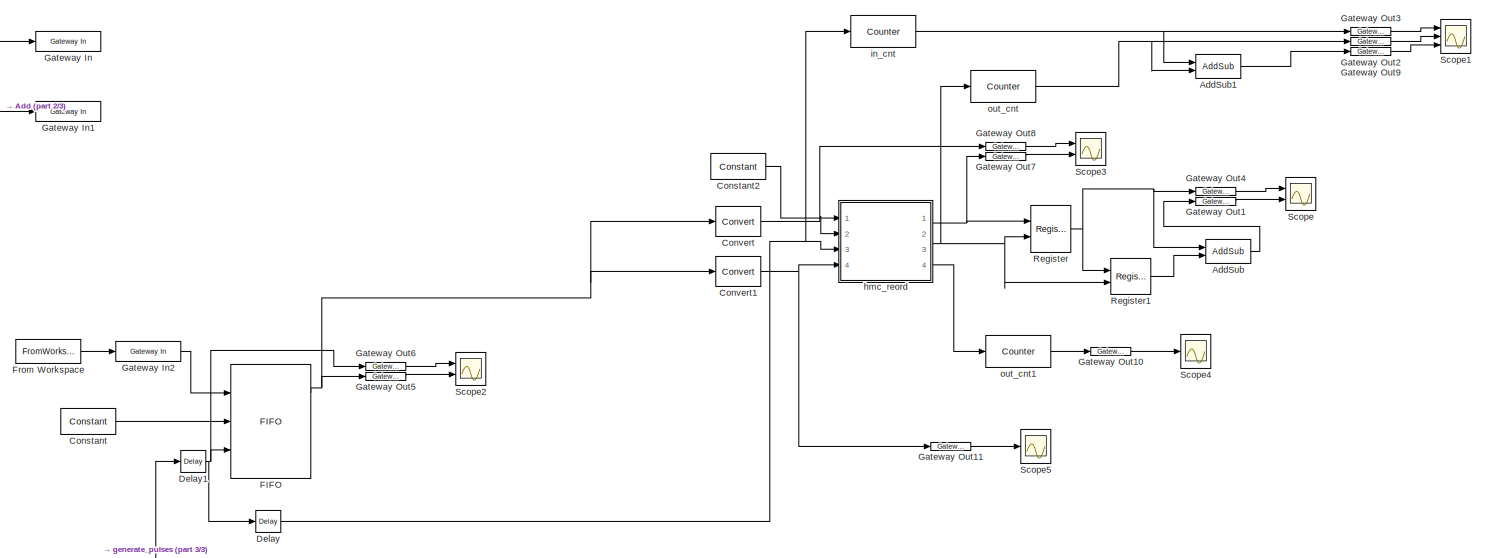
[diagram: root canvas - part 1/3, middle right region]
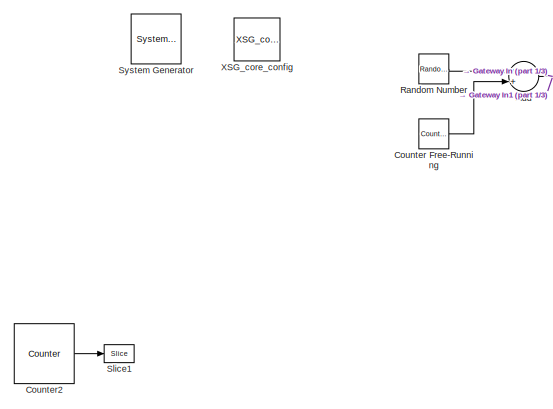
[diagram: root canvas - part 2/3, top left region]
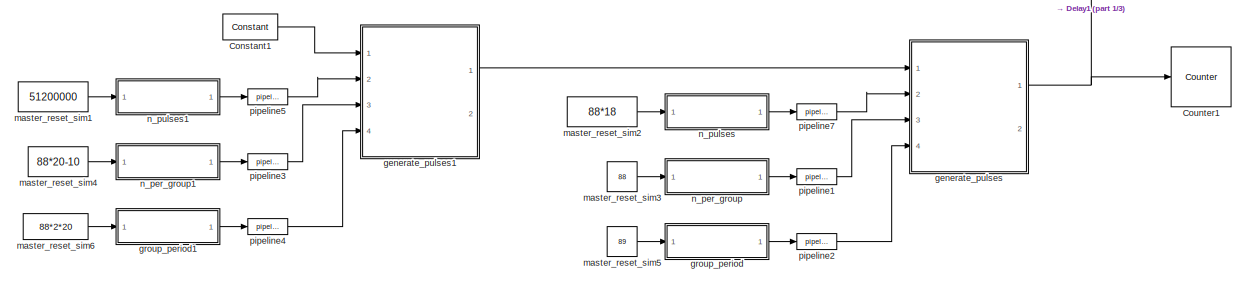
[diagram: root canvas - part 3/3, bottom left region]
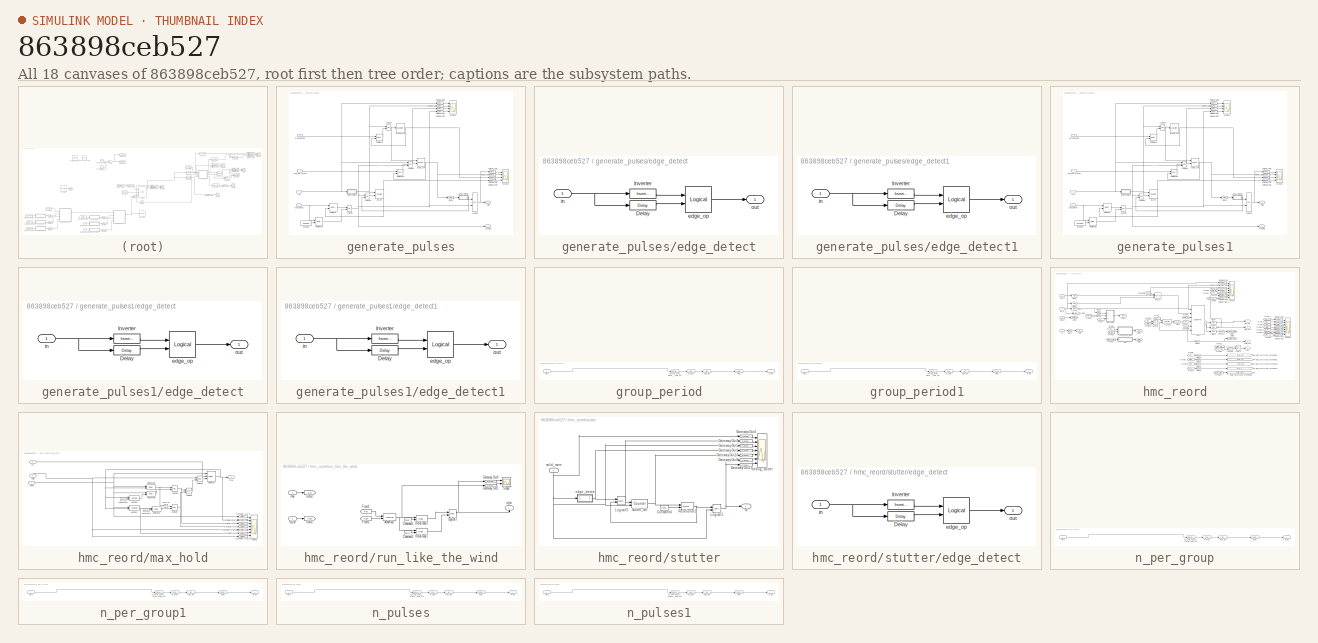
[diagram: thumbnail index - all 18 canvases of the model, root first then tree order]
MODEL slx_863898ceb527
KIND model
CONFIG AbsTol = auto
CONFIG EnableMultiTasking = off
CONFIG FixedStep = auto
CONFIG MaxStep = auto
CONFIG MinStep = auto
CONFIG RelTol = 1e-3
CONFIG SampleTimeConstraint = Unconstrained
CONFIG Solver = VariableStepAuto
CONFIG SolverName = VariableStepAuto
CONFIG StartTime = 0.0
CONFIG StopTime = 16384
BLOCK [Reference]  System Generator  REF=xbsIndex_r4/ System Generator
  AttributesFormatString = System\nGenerator
  Ports = []
  SourceBlock = xbsIndex_r4/ System Generator
  SourceType = Xilinx System Generator Block
  Tag = genX
  UserDataPersistent = on
BLOCK [Sum] Add
  InputSameDT = off
  OutDataTypeStr = Inherit: Inherit via internal rule
  Ports = [2, 1]
  SaturateOnIntegerOverflow = off
BLOCK [Reference] AddSub  REF=xbsIndex_r4/AddSub
  Ports = [2, 1]
  SourceBlock = xbsIndex_r4/AddSub
  SourceType = Xilinx Adder/Subtracter Block
BLOCK [Reference] AddSub1  REF=xbsIndex_r4/AddSub
  Ports = [2, 1]
  SourceBlock = xbsIndex_r4/AddSub
  SourceType = Xilinx Adder/Subtracter Block
BLOCK [Reference] Constant  REF=xbsIndex_r4/Constant
  Ports = [0, 1]
  SourceBlock = xbsIndex_r4/Constant
  SourceType = Xilinx Constant Block Block
BLOCK [Reference] Constant1  REF=xbsIndex_r4/Constant
  Ports = [0, 1]
  SourceBlock = xbsIndex_r4/Constant
  SourceType = Xilinx Constant Block Block
BLOCK [Reference] Constant2  REF=xbsIndex_r4/Constant
  Ports = [0, 1]
  SourceBlock = xbsIndex_r4/Constant
  SourceType = Xilinx Constant Block Block
BLOCK [Reference] Convert  REF=xbsIndex_r4/Convert
  Ports = [1, 1]
  SourceBlock = xbsIndex_r4/Convert
  SourceType = Xilinx Type Converter Block
BLOCK [Reference] Convert1  REF=xbsIndex_r4/Convert
  Ports = [1, 1]
  SourceBlock = xbsIndex_r4/Convert
  SourceType = Xilinx Type Converter Block
BLOCK [Reference] Counter Free-Running  REF=simulink/Sources/Counter
Free-Running
  Ports = [0, 1]
  SourceBlock = simulink/Sources/Counter\nFree-Running
  SourceType = Counter Free-Running
BLOCK [Reference] Counter1  REF=xbsIndex_r4/Counter
  Ports = [1, 1]
  SourceBlock = xbsIndex_r4/Counter
  SourceType = Xilinx Counter Block
BLOCK [Reference] Counter2  REF=xbsIndex_r4/Counter
  Ports = [0, 1]
  SourceBlock = xbsIndex_r4/Counter
  SourceType = Xilinx Counter Block
BLOCK [Reference] Delay  REF=xbsIndex_r4/Delay
  Ports = [1, 1]
  SourceBlock = xbsIndex_r4/Delay
  SourceType = Xilinx Delay Block
BLOCK [Reference] Delay1  REF=xbsIndex_r4/Delay
  Ports = [1, 1]
  SourceBlock = xbsIndex_r4/Delay
  SourceType = Xilinx Delay Block
BLOCK [Reference] FIFO  REF=xbsIndex_r4/FIFO
  Ports = [3, 3]
  SourceBlock = xbsIndex_r4/FIFO
  SourceType = Xilinx FIFO Block Block
BLOCK [FromWorkspace] From Workspace
  Interpolate = off
  OutputAfterFinalValue = Holding final value
  SampleTime = 1
  VariableName = simin1
  ZeroCross = on
BLOCK [Reference] Gateway In  REF=xbsIndex_r4/Gateway In
  Ports = [1, 1]
  SourceBlock = xbsIndex_r4/Gateway In
  SourceType = Xilinx Gateway In Block
BLOCK [Reference] Gateway In1  REF=xbsIndex_r4/Gateway In
  Ports = [1, 1]
  SourceBlock = xbsIndex_r4/Gateway In
  SourceType = Xilinx Gateway In Block
BLOCK [Reference] Gateway In2  REF=xbsIndex_r4/Gateway In
  Ports = [1, 1]
  SourceBlock = xbsIndex_r4/Gateway In
  SourceType = Xilinx Gateway In Block
BLOCK [Reference] Gateway Out1  REF=xbsIndex_r4/Gateway Out
  Ports = [1, 1]
  SourceBlock = xbsIndex_r4/Gateway Out
  SourceType = Xilinx Gateway Out Block
BLOCK [Reference] Gateway Out10  REF=xbsIndex_r4/Gateway Out
  Ports = [1, 1]
  SourceBlock = xbsIndex_r4/Gateway Out
  SourceType = Xilinx Gateway Out Block
BLOCK [Reference] Gateway Out11  REF=xbsIndex_r4/Gateway Out
  Ports = [1, 1]
  SourceBlock = xbsIndex_r4/Gateway Out
  SourceType = Xilinx Gateway Out Block
BLOCK [Reference] Gateway Out2  REF=xbsIndex_r4/Gateway Out
  Ports = [1, 1]
  SourceBlock = xbsIndex_r4/Gateway Out
  SourceType = Xilinx Gateway Out Block
BLOCK [Reference] Gateway Out3  REF=xbsIndex_r4/Gateway Out
  Ports = [1, 1]
  SourceBlock = xbsIndex_r4/Gateway Out
  SourceType = Xilinx Gateway Out Block
BLOCK [Reference] Gateway Out4  REF=xbsIndex_r4/Gateway Out
  Ports = [1, 1]
  SourceBlock = xbsIndex_r4/Gateway Out
  SourceType = Xilinx Gateway Out Block
BLOCK [Reference] Gateway Out5  REF=xbsIndex_r4/Gateway Out
  Ports = [1, 1]
  SourceBlock = xbsIndex_r4/Gateway Out
  SourceType = Xilinx Gateway Out Block
BLOCK [Reference] Gateway Out6  REF=xbsIndex_r4/Gateway Out
  Ports = [1, 1]
  SourceBlock = xbsIndex_r4/Gateway Out
  SourceType = Xilinx Gateway Out Block
BLOCK [Reference] Gateway Out7  REF=xbsIndex_r4/Gateway Out
  Ports = [1, 1]
  SourceBlock = xbsIndex_r4/Gateway Out
  SourceType = Xilinx Gateway Out Block
BLOCK [Reference] Gateway Out8  REF=xbsIndex_r4/Gateway Out
  Ports = [1, 1]
  SourceBlock = xbsIndex_r4/Gateway Out
  SourceType = Xilinx Gateway Out Block
BLOCK [Reference] Gateway Out9  REF=xbsIndex_r4/Gateway Out
  Ports = [1, 1]
  SourceBlock = xbsIndex_r4/Gateway Out
  SourceType = Xilinx Gateway Out Block
BLOCK [RandomNumber] Random Number
  SampleTime = 1
  Variance = 16
BLOCK [Reference] Register  REF=xbsIndex_r4/Register
  Ports = [2, 1]
  SourceBlock = xbsIndex_r4/Register
  SourceType = Xilinx Register Block
BLOCK [Reference] Register1  REF=xbsIndex_r4/Register
  Ports = [2, 1]
  SourceBlock = xbsIndex_r4/Register
  SourceType = Xilinx Register Block
BLOCK [Scope] Scope
  NumInputPorts = 2
  Ports = [2]
  ScopeSpecificationString = Simulink.scopes.TimeScopeBlockCfg('CurrentConfiguration', extmgr.ConfigurationSet(extmgr.Configuration('Core','General UI',true),extmgr.Configuration('Core','Source UI',true),extmgr.Configuration('Sources','WiredSimulink',true,'DataLoggingVariableName','ScopeData2'),extmgr.Configuration('Visuals','Time Domain',true,'SerializedDisplays',{struct('MinYLimReal','-1064.00000','MaxYLimReal','9576.00000'...<+2130ch>
BLOCK [Scope] Scope1
  NumInputPorts = 3
  Ports = [3]
  ScopeSpecificationString = Simulink.scopes.TimeScopeBlockCfg('CurrentConfiguration', extmgr.ConfigurationSet(extmgr.Configuration('Core','General UI',true),extmgr.Configuration('Core','Source UI',true),extmgr.Configuration('Sources','WiredSimulink',true,'DataLoggingVariableName','ScopeData2'),extmgr.Configuration('Visuals','Time Domain',true,'SerializedDisplays',{struct('MinYLimReal','-945.00000','MaxYLimReal','8505.00000',...<+2794ch>
BLOCK [Scope] Scope2
  NumInputPorts = 2
  Ports = [2]
  ScopeSpecificationString = Simulink.scopes.TimeScopeBlockCfg('CurrentConfiguration', extmgr.ConfigurationSet(extmgr.Configuration('Core','General UI',true),extmgr.Configuration('Core','Source UI',true),extmgr.Configuration('Sources','WiredSimulink',true,'DataLoggingVariableName','ScopeData3'),extmgr.Configuration('Visuals','Time Domain',true,'SerializedDisplays',{struct('MinYLimReal','-0.125','MaxYLimReal','1.125','YLabelRe...<+2119ch>
BLOCK [Scope] Scope3
  NumInputPorts = 2
  Ports = [2]
  ScopeSpecificationString = Simulink.scopes.TimeScopeBlockCfg('CurrentConfiguration', extmgr.ConfigurationSet(extmgr.Configuration('Core','General UI',true),extmgr.Configuration('Core','Source UI',true),extmgr.Configuration('Sources','WiredSimulink',true,'DataLoggingVariableName','ScopeData1'),extmgr.Configuration('Visuals','Time Domain',true,'SerializedDisplays',{struct('MinYLimReal','-1066.5','MaxYLimReal','9598.5','YLabel...<+2123ch>
BLOCK [Scope] Scope4
  NumInputPorts = 1
  Ports = [1]
  ScopeSpecificationString = Simulink.scopes.TimeScopeBlockCfg('CurrentConfiguration', extmgr.ConfigurationSet(extmgr.Configuration('Core','General UI',true),extmgr.Configuration('Core','Source UI',true),extmgr.Configuration('Sources','WiredSimulink',true,'DataLoggingVariableName','ScopeData1'),extmgr.Configuration('Visuals','Time Domain',true,'SerializedDisplays',{struct('MinYLimReal','-0.5','MaxYLimReal','4.5','YLabelReal',...<+2021ch>
BLOCK [Scope] Scope5
  NumInputPorts = 1
  Ports = [1]
  ScopeSpecificationString = Simulink.scopes.TimeScopeBlockCfg('CurrentConfiguration', extmgr.ConfigurationSet(extmgr.Configuration('Core','General UI',true),extmgr.Configuration('Core','Source UI',true),extmgr.Configuration('Sources','WiredSimulink',true,'DataLoggingVariableName','ScopeData2'),extmgr.Configuration('Visuals','Time Domain',true,'SerializedDisplays',{struct('MinYLimReal','-63.875','MaxYLimReal','574.875','YLabe...<+2055ch>
BLOCK [Reference] Slice1  REF=xbsIndex_r4/Slice
  Ports = [1, 1]
  SourceBlock = xbsIndex_r4/Slice
  SourceType = Xilinx Bit Slice Extractor Block
BLOCK [Reference] XSG_core_config  REF=xps_library/XSG_core_config  (lib defined in mdl_00b5cec29cd0, mdl_02ab6ecaa3d1, +5 more)
  Ports = []
  SourceBlock = xps_library/XSG_core_config
  SourceType = xsg core config
  Tag = xps:xsg
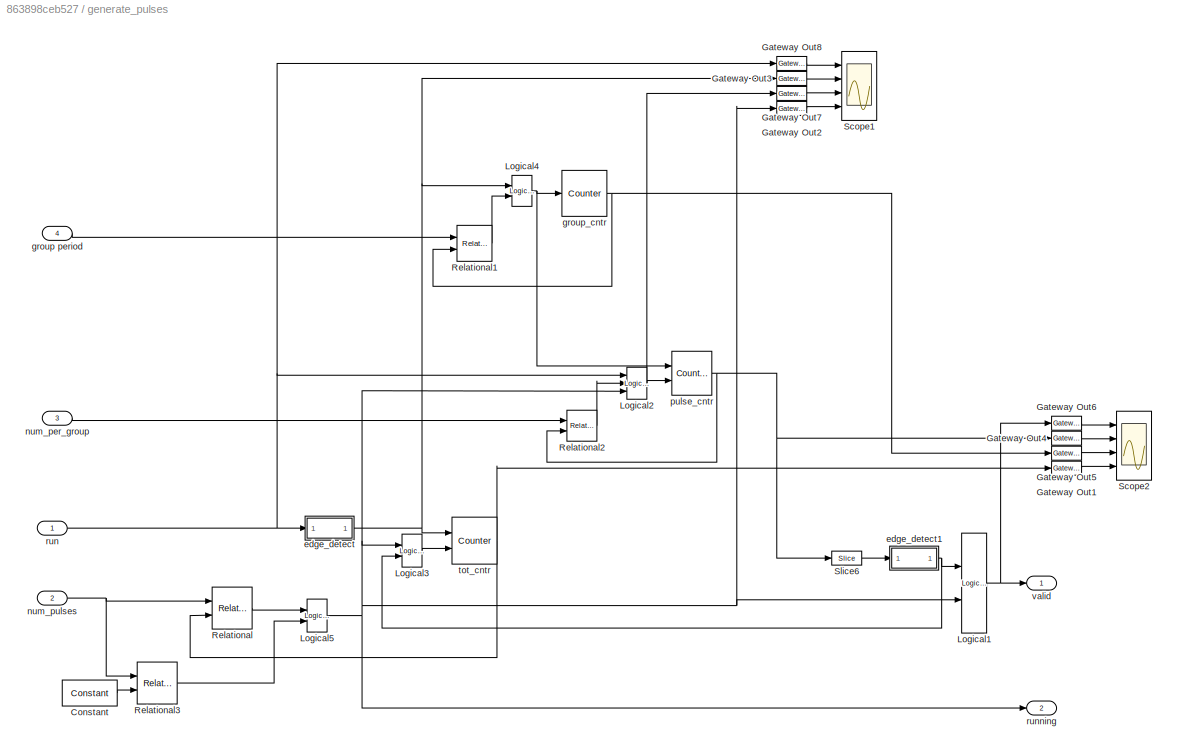
BLOCK [SubSystem] generate_pulses
  Ports = [4, 2]
  RequestExecContextInheritance = off
  Variant = off
BLOCK [Reference] generate_pulses/Constant  REF=xbsIndex_r4/Constant
  Ports = [0, 1]
  SourceBlock = xbsIndex_r4/Constant
  SourceType = Xilinx Constant Block Block
BLOCK [Reference] generate_pulses/Gateway Out1  REF=xbsIndex_r4/Gateway Out
  Ports = [1, 1]
  SourceBlock = xbsIndex_r4/Gateway Out
  SourceType = Xilinx Gateway Out Block
BLOCK [Reference] generate_pulses/Gateway Out2  REF=xbsIndex_r4/Gateway Out
  Ports = [1, 1]
  SourceBlock = xbsIndex_r4/Gateway Out
  SourceType = Xilinx Gateway Out Block
BLOCK [Reference] generate_pulses/Gateway Out3  REF=xbsIndex_r4/Gateway Out
  Ports = [1, 1]
  SourceBlock = xbsIndex_r4/Gateway Out
  SourceType = Xilinx Gateway Out Block
BLOCK [Reference] generate_pulses/Gateway Out4  REF=xbsIndex_r4/Gateway Out
  Ports = [1, 1]
  SourceBlock = xbsIndex_r4/Gateway Out
  SourceType = Xilinx Gateway Out Block
BLOCK [Reference] generate_pulses/Gateway Out5  REF=xbsIndex_r4/Gateway Out
  Ports = [1, 1]
  SourceBlock = xbsIndex_r4/Gateway Out
  SourceType = Xilinx Gateway Out Block
BLOCK [Reference] generate_pulses/Gateway Out6  REF=xbsIndex_r4/Gateway Out
  Ports = [1, 1]
  SourceBlock = xbsIndex_r4/Gateway Out
  SourceType = Xilinx Gateway Out Block
BLOCK [Reference] generate_pulses/Gateway Out7  REF=xbsIndex_r4/Gateway Out
  Ports = [1, 1]
  SourceBlock = xbsIndex_r4/Gateway Out
  SourceType = Xilinx Gateway Out Block
BLOCK [Reference] generate_pulses/Gateway Out8  REF=xbsIndex_r4/Gateway Out
  Ports = [1, 1]
  SourceBlock = xbsIndex_r4/Gateway Out
  SourceType = Xilinx Gateway Out Block
BLOCK [Reference] generate_pulses/Logical1  REF=xbsIndex_r4/Logical
  Ports = [2, 1]
  SourceBlock = xbsIndex_r4/Logical
  SourceType = Xilinx Logical Block Block
BLOCK [Reference] generate_pulses/Logical2  REF=xbsIndex_r4/Logical
  Ports = [3, 1]
  SourceBlock = xbsIndex_r4/Logical
  SourceType = Xilinx Logical Block Block
BLOCK [Reference] generate_pulses/Logical3  REF=xbsIndex_r4/Logical
  Ports = [2, 1]
  SourceBlock = xbsIndex_r4/Logical
  SourceType = Xilinx Logical Block Block
BLOCK [Reference] generate_pulses/Logical4  REF=xbsIndex_r4/Logical
  Ports = [2, 1]
  SourceBlock = xbsIndex_r4/Logical
  SourceType = Xilinx Logical Block Block
BLOCK [Reference] generate_pulses/Logical5  REF=xbsIndex_r4/Logical
  Ports = [2, 1]
  SourceBlock = xbsIndex_r4/Logical
  SourceType = Xilinx Logical Block Block
BLOCK [Reference] generate_pulses/Relational  REF=xbsIndex_r4/Relational
  Ports = [2, 1]
  SourceBlock = xbsIndex_r4/Relational
  SourceType = Xilinx Arithmetic Relational Operator Block
BLOCK [Reference] generate_pulses/Relational1  REF=xbsIndex_r4/Relational
  Ports = [2, 1]
  SourceBlock = xbsIndex_r4/Relational
  SourceType = Xilinx Arithmetic Relational Operator Block
BLOCK [Reference] generate_pulses/Relational2  REF=xbsIndex_r4/Relational
  Ports = [2, 1]
  SourceBlock = xbsIndex_r4/Relational
  SourceType = Xilinx Arithmetic Relational Operator Block
BLOCK [Reference] generate_pulses/Relational3  REF=xbsIndex_r4/Relational
  Ports = [2, 1]
  SourceBlock = xbsIndex_r4/Relational
  SourceType = Xilinx Arithmetic Relational Operator Block
BLOCK [Scope] generate_pulses/Scope1
  NumInputPorts = 4
  Ports = [4]
  ScopeSpecificationString = Simulink.scopes.TimeScopeBlockCfg('CurrentConfiguration', extmgr.ConfigurationSet(extmgr.Configuration('Core','General UI',true),extmgr.Configuration('Core','Source UI',true),extmgr.Configuration('Sources','WiredSimulink',true,'DataLoggingSaveFormat','StructureWithTime','DataLoggingDecimation','1','DataLoggingDecimateData',true),extmgr.Configuration('Visuals','Time Domain',true,'SerializedDisplays...<+3642ch>
BLOCK [Scope] generate_pulses/Scope2
  NumInputPorts = 4
  Ports = [4]
  ScopeSpecificationString = C++SS(StrPVP('Location','[6, 49, 1030, 743]'),StrPVP('Open','off'),StrPVP('ZoomMode','yonly'),MxPVP('AxesTitles',24,'struct(''axes1'',''valid'',''axes2'',''pulse_cnt'',''axes3'',''group_cnt'',''axes4'',''total_pulse_cnt'')'),StrPVP('ShowLegends','off'),StrPVP('YMin','0.95~0~-1~-5'),StrPVP('YMax','1.05~1~1~5'),StrPVP('SaveName','ScopeData1'),StrPVP('DataFormat','StructureWithTime'),StrPVP('LimitDat...<+114ch>
BLOCK [Reference] generate_pulses/Slice6  REF=xbsIndex_r4/Slice
  Ports = [1, 1]
  SourceBlock = xbsIndex_r4/Slice
  SourceType = Xilinx Bit Slice Extractor Block
BLOCK [SubSystem] generate_pulses/edge_detect
  AncestorBlock = casper_library_misc/edge_detect
  AttributesFormatString = rising edges\nactive high
  Ports = [1, 1]
  RequestExecContextInheritance = off
  UserDataPersistent = on
  Variant = off
BLOCK [Reference] generate_pulses/edge_detect/Delay  REF=xbsIndex_r4/Delay
  Ports = [1, 1]
  SourceBlock = xbsIndex_r4/Delay
  SourceType = Xilinx Delay Block
BLOCK [Reference] generate_pulses/edge_detect/Inverter  REF=xbsIndex_r4/Inverter
  Ports = [1, 1]
  SourceBlock = xbsIndex_r4/Inverter
  SourceType = Xilinx Inverter Block
BLOCK [Reference] generate_pulses/edge_detect/edge_op  REF=xbsIndex_r4/Logical
  Ports = [2, 1]
  SourceBlock = xbsIndex_r4/Logical
  SourceType = Xilinx Logical Block Block
BLOCK [Inport] generate_pulses/edge_detect/in
  IconDisplay = Port number
BLOCK [Outport] generate_pulses/edge_detect/out
  IconDisplay = Port number
BLOCK [SubSystem] generate_pulses/edge_detect1
  AncestorBlock = casper_library_misc/edge_detect
  AttributesFormatString = both edges\nactive high
  Ports = [1, 1]
  RequestExecContextInheritance = off
  UserDataPersistent = on
  Variant = off
BLOCK [Reference] generate_pulses/edge_detect1/Delay  REF=xbsIndex_r4/Delay
  Ports = [1, 1]
  SourceBlock = xbsIndex_r4/Delay
  SourceType = Xilinx Delay Block
BLOCK [Reference] generate_pulses/edge_detect1/Inverter  REF=xbsIndex_r4/Inverter
  Ports = [1, 1]
  SourceBlock = xbsIndex_r4/Inverter
  SourceType = Xilinx Inverter Block
BLOCK [Reference] generate_pulses/edge_detect1/edge_op  REF=xbsIndex_r4/Logical
  Ports = [2, 1]
  SourceBlock = xbsIndex_r4/Logical
  SourceType = Xilinx Logical Block Block
BLOCK [Inport] generate_pulses/edge_detect1/in
  IconDisplay = Port number
BLOCK [Outport] generate_pulses/edge_detect1/out
  IconDisplay = Port number
BLOCK [Inport] generate_pulses/group period
  IconDisplay = Port number
  Port = 4
BLOCK [Reference] generate_pulses/group_cntr  REF=xbsIndex_r4/Counter
  Ports = [1, 1]
  SourceBlock = xbsIndex_r4/Counter
  SourceType = Xilinx Counter Block
BLOCK [Inport] generate_pulses/num_per_group
  IconDisplay = Port number
  Port = 3
BLOCK [Inport] generate_pulses/num_pulses
  IconDisplay = Port number
  Port = 2
BLOCK [Reference] generate_pulses/pulse_cntr  REF=xbsIndex_r4/Counter
  Ports = [2, 1]
  SourceBlock = xbsIndex_r4/Counter
  SourceType = Xilinx Counter Block
BLOCK [Inport] generate_pulses/run
  IconDisplay = Port number
BLOCK [Outport] generate_pulses/running
  IconDisplay = Port number
  Port = 2
BLOCK [Reference] generate_pulses/tot_cntr  REF=xbsIndex_r4/Counter
  Ports = [2, 1]
  SourceBlock = xbsIndex_r4/Counter
  SourceType = Xilinx Counter Block
BLOCK [Outport] generate_pulses/valid
  IconDisplay = Port number
BLOCK [SubSystem] generate_pulses1
  Ports = [4, 2]
  RequestExecContextInheritance = off
  Variant = off
BLOCK [Reference] generate_pulses1/Constant  REF=xbsIndex_r4/Constant
  Ports = [0, 1]
  SourceBlock = xbsIndex_r4/Constant
  SourceType = Xilinx Constant Block Block
BLOCK [Reference] generate_pulses1/Gateway Out1  REF=xbsIndex_r4/Gateway Out
  Ports = [1, 1]
  SourceBlock = xbsIndex_r4/Gateway Out
  SourceType = Xilinx Gateway Out Block
BLOCK [Reference] generate_pulses1/Gateway Out2  REF=xbsIndex_r4/Gateway Out
  Ports = [1, 1]
  SourceBlock = xbsIndex_r4/Gateway Out
  SourceType = Xilinx Gateway Out Block
BLOCK [Reference] generate_pulses1/Gateway Out3  REF=xbsIndex_r4/Gateway Out
  Ports = [1, 1]
  SourceBlock = xbsIndex_r4/Gateway Out
  SourceType = Xilinx Gateway Out Block
BLOCK [Reference] generate_pulses1/Gateway Out4  REF=xbsIndex_r4/Gateway Out
  Ports = [1, 1]
  SourceBlock = xbsIndex_r4/Gateway Out
  SourceType = Xilinx Gateway Out Block
BLOCK [Reference] generate_pulses1/Gateway Out5  REF=xbsIndex_r4/Gateway Out
  Ports = [1, 1]
  SourceBlock = xbsIndex_r4/Gateway Out
  SourceType = Xilinx Gateway Out Block
BLOCK [Reference] generate_pulses1/Gateway Out6  REF=xbsIndex_r4/Gateway Out
  Ports = [1, 1]
  SourceBlock = xbsIndex_r4/Gateway Out
  SourceType = Xilinx Gateway Out Block
BLOCK [Reference] generate_pulses1/Gateway Out7  REF=xbsIndex_r4/Gateway Out
  Ports = [1, 1]
  SourceBlock = xbsIndex_r4/Gateway Out
  SourceType = Xilinx Gateway Out Block
BLOCK [Reference] generate_pulses1/Gateway Out8  REF=xbsIndex_r4/Gateway Out
  Ports = [1, 1]
  SourceBlock = xbsIndex_r4/Gateway Out
  SourceType = Xilinx Gateway Out Block
BLOCK [Reference] generate_pulses1/Logical1  REF=xbsIndex_r4/Logical
  Ports = [2, 1]
  SourceBlock = xbsIndex_r4/Logical
  SourceType = Xilinx Logical Block Block
BLOCK [Reference] generate_pulses1/Logical2  REF=xbsIndex_r4/Logical
  Ports = [3, 1]
  SourceBlock = xbsIndex_r4/Logical
  SourceType = Xilinx Logical Block Block
BLOCK [Reference] generate_pulses1/Logical3  REF=xbsIndex_r4/Logical
  Ports = [2, 1]
  SourceBlock = xbsIndex_r4/Logical
  SourceType = Xilinx Logical Block Block
BLOCK [Reference] generate_pulses1/Logical4  REF=xbsIndex_r4/Logical
  Ports = [2, 1]
  SourceBlock = xbsIndex_r4/Logical
  SourceType = Xilinx Logical Block Block
BLOCK [Reference] generate_pulses1/Logical5  REF=xbsIndex_r4/Logical
  Ports = [2, 1]
  SourceBlock = xbsIndex_r4/Logical
  SourceType = Xilinx Logical Block Block
BLOCK [Reference] generate_pulses1/Relational  REF=xbsIndex_r4/Relational
  Ports = [2, 1]
  SourceBlock = xbsIndex_r4/Relational
  SourceType = Xilinx Arithmetic Relational Operator Block
BLOCK [Reference] generate_pulses1/Relational1  REF=xbsIndex_r4/Relational
  Ports = [2, 1]
  SourceBlock = xbsIndex_r4/Relational
  SourceType = Xilinx Arithmetic Relational Operator Block
BLOCK [Reference] generate_pulses1/Relational2  REF=xbsIndex_r4/Relational
  Ports = [2, 1]
  SourceBlock = xbsIndex_r4/Relational
  SourceType = Xilinx Arithmetic Relational Operator Block
BLOCK [Reference] generate_pulses1/Relational3  REF=xbsIndex_r4/Relational
  Ports = [2, 1]
  SourceBlock = xbsIndex_r4/Relational
  SourceType = Xilinx Arithmetic Relational Operator Block
BLOCK [Scope] generate_pulses1/Scope1
  NumInputPorts = 4
  Ports = [4]
  ScopeSpecificationString = Simulink.scopes.TimeScopeBlockCfg('CurrentConfiguration', extmgr.ConfigurationSet(extmgr.Configuration('Core','General UI',true),extmgr.Configuration('Core','Source UI',true),extmgr.Configuration('Sources','WiredSimulink',true,'DataLoggingSaveFormat','StructureWithTime','DataLoggingDecimation','1','DataLoggingDecimateData',true),extmgr.Configuration('Visuals','Time Domain',true,'SerializedDisplays...<+3642ch>
BLOCK [Scope] generate_pulses1/Scope2
  NumInputPorts = 4
  Ports = [4]
  ScopeSpecificationString = C++SS(StrPVP('Location','[6, 49, 1030, 743]'),StrPVP('Open','off'),StrPVP('ZoomMode','yonly'),MxPVP('AxesTitles',24,'struct(''axes1'',''valid'',''axes2'',''pulse_cnt'',''axes3'',''group_cnt'',''axes4'',''total_pulse_cnt'')'),StrPVP('ShowLegends','off'),StrPVP('YMin','0.95~0~-1~-5'),StrPVP('YMax','1.05~1~1~5'),StrPVP('SaveName','ScopeData1'),StrPVP('DataFormat','StructureWithTime'),StrPVP('LimitDat...<+114ch>
BLOCK [Reference] generate_pulses1/Slice6  REF=xbsIndex_r4/Slice
  Ports = [1, 1]
  SourceBlock = xbsIndex_r4/Slice
  SourceType = Xilinx Bit Slice Extractor Block
BLOCK [SubSystem] generate_pulses1/edge_detect
  AncestorBlock = casper_library_misc/edge_detect
  AttributesFormatString = rising edges\nactive high
  Ports = [1, 1]
  RequestExecContextInheritance = off
  UserDataPersistent = on
  Variant = off
BLOCK [Reference] generate_pulses1/edge_detect/Delay  REF=xbsIndex_r4/Delay
  Ports = [1, 1]
  SourceBlock = xbsIndex_r4/Delay
  SourceType = Xilinx Delay Block
BLOCK [Reference] generate_pulses1/edge_detect/Inverter  REF=xbsIndex_r4/Inverter
  Ports = [1, 1]
  SourceBlock = xbsIndex_r4/Inverter
  SourceType = Xilinx Inverter Block
BLOCK [Reference] generate_pulses1/edge_detect/edge_op  REF=xbsIndex_r4/Logical
  Ports = [2, 1]
  SourceBlock = xbsIndex_r4/Logical
  SourceType = Xilinx Logical Block Block
BLOCK [Inport] generate_pulses1/edge_detect/in
  IconDisplay = Port number
BLOCK [Outport] generate_pulses1/edge_detect/out
  IconDisplay = Port number
BLOCK [SubSystem] generate_pulses1/edge_detect1
  AncestorBlock = casper_library_misc/edge_detect
  AttributesFormatString = both edges\nactive high
  Ports = [1, 1]
  RequestExecContextInheritance = off
  UserDataPersistent = on
  Variant = off
BLOCK [Reference] generate_pulses1/edge_detect1/Delay  REF=xbsIndex_r4/Delay
  Ports = [1, 1]
  SourceBlock = xbsIndex_r4/Delay
  SourceType = Xilinx Delay Block
BLOCK [Reference] generate_pulses1/edge_detect1/Inverter  REF=xbsIndex_r4/Inverter
  Ports = [1, 1]
  SourceBlock = xbsIndex_r4/Inverter
  SourceType = Xilinx Inverter Block
BLOCK [Reference] generate_pulses1/edge_detect1/edge_op  REF=xbsIndex_r4/Logical
  Ports = [2, 1]
  SourceBlock = xbsIndex_r4/Logical
  SourceType = Xilinx Logical Block Block
BLOCK [Inport] generate_pulses1/edge_detect1/in
  IconDisplay = Port number
BLOCK [Outport] generate_pulses1/edge_detect1/out
  IconDisplay = Port number
BLOCK [Inport] generate_pulses1/group period
  IconDisplay = Port number
  Port = 4
BLOCK [Reference] generate_pulses1/group_cntr  REF=xbsIndex_r4/Counter
  Ports = [1, 1]
  SourceBlock = xbsIndex_r4/Counter
  SourceType = Xilinx Counter Block
BLOCK [Inport] generate_pulses1/num_per_group
  IconDisplay = Port number
  Port = 3
BLOCK [Inport] generate_pulses1/num_pulses
  IconDisplay = Port number
  Port = 2
BLOCK [Reference] generate_pulses1/pulse_cntr  REF=xbsIndex_r4/Counter
  Ports = [2, 1]
  SourceBlock = xbsIndex_r4/Counter
  SourceType = Xilinx Counter Block
BLOCK [Inport] generate_pulses1/run
  IconDisplay = Port number
BLOCK [Outport] generate_pulses1/running
  IconDisplay = Port number
  Port = 2
BLOCK [Reference] generate_pulses1/tot_cntr  REF=xbsIndex_r4/Counter
  Ports = [2, 1]
  SourceBlock = xbsIndex_r4/Counter
  SourceType = Xilinx Counter Block
BLOCK [Outport] generate_pulses1/valid
  IconDisplay = Port number
BLOCK [SubSystem] group_period
  AncestorBlock = xps_library/software register
  AttributesFormatString = 1input:uf32.0 = 32 bits
  Ports = [1, 1]
  RequestExecContextInheritance = off
  Tag = xps:sw_reg
  Variant = off
BLOCK [Outport] group_period/in_reg
  IconDisplay = Port number
BLOCK [Reference] group_period/io_delay  REF=xbsIndex_r4/Delay
  Ports = [1, 1]
  SourceBlock = xbsIndex_r4/Delay
  SourceType = Xilinx Delay Block
BLOCK [Reference] group_period/reint1  REF=xbsIndex_r4/Reinterpret
  Ports = [1, 1]
  SourceBlock = xbsIndex_r4/Reinterpret
  SourceType = Xilinx Type Reinterpreter Block
BLOCK [Inport] group_period/sim_1
  IconDisplay = Port number
BLOCK [Reference] group_period/slice_reg  REF=xbsIndex_r4/Slice
  Ports = [1, 1]
  SourceBlock = xbsIndex_r4/Slice
  SourceType = Xilinx Bit Slice Extractor Block
BLOCK [Reference] group_period/test_hmc_reord_group_period_user_data_out  REF=xbsIndex_r4/Gateway In
  Ports = [1, 1]
  SourceBlock = xbsIndex_r4/Gateway In
  SourceType = Xilinx Gateway In Block
BLOCK [SubSystem] group_period1
  AncestorBlock = xps_library/software register
  AttributesFormatString = 1input:uf32.0 = 32 bits
  Ports = [1, 1]
  RequestExecContextInheritance = off
  Tag = xps:sw_reg
  Variant = off
BLOCK [Outport] group_period1/in_reg
  IconDisplay = Port number
BLOCK [Reference] group_period1/io_delay  REF=xbsIndex_r4/Delay
  Ports = [1, 1]
  SourceBlock = xbsIndex_r4/Delay
  SourceType = Xilinx Delay Block
BLOCK [Reference] group_period1/reint1  REF=xbsIndex_r4/Reinterpret
  Ports = [1, 1]
  SourceBlock = xbsIndex_r4/Reinterpret
  SourceType = Xilinx Type Reinterpreter Block
BLOCK [Inport] group_period1/sim_1
  IconDisplay = Port number
BLOCK [Reference] group_period1/slice_reg  REF=xbsIndex_r4/Slice
  Ports = [1, 1]
  SourceBlock = xbsIndex_r4/Slice
  SourceType = Xilinx Bit Slice Extractor Block
BLOCK [Reference] group_period1/test_hmc_reord_group_period1_user_data_out  REF=xbsIndex_r4/Gateway In
  Ports = [1, 1]
  SourceBlock = xbsIndex_r4/Gateway In
  SourceType = Xilinx Gateway In Block
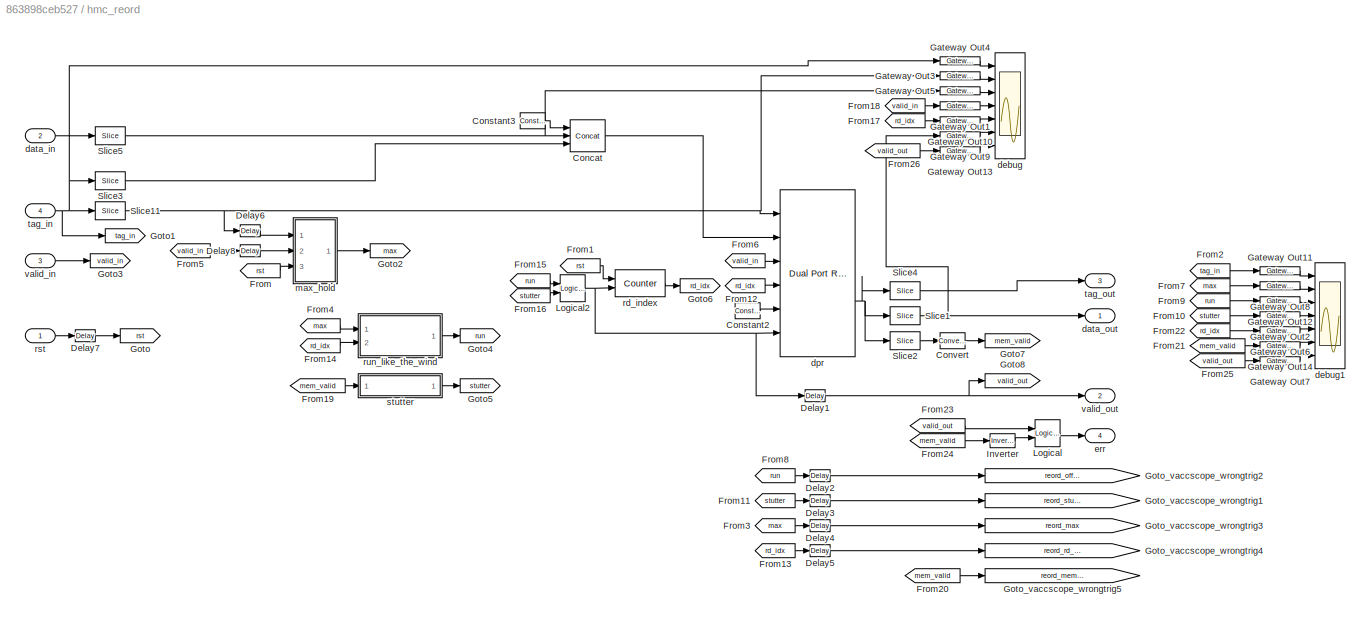
BLOCK [SubSystem] hmc_reord
  Ports = [4, 4]
  RequestExecContextInheritance = off
  Variant = off
BLOCK [Reference] hmc_reord/Concat  REF=xbsIndex_r4/Concat
  Ports = [3, 1]
  SourceBlock = xbsIndex_r4/Concat
  SourceType = Xilinx Bus Concatenator Block
BLOCK [Reference] hmc_reord/Constant2  REF=xbsIndex_r4/Constant
  Ports = [0, 1]
  SourceBlock = xbsIndex_r4/Constant
  SourceType = Xilinx Constant Block Block
BLOCK [Reference] hmc_reord/Constant3  REF=xbsIndex_r4/Constant
  Ports = [0, 1]
  SourceBlock = xbsIndex_r4/Constant
  SourceType = Xilinx Constant Block Block
BLOCK [Reference] hmc_reord/Convert  REF=xbsIndex_r4/Convert
  Ports = [1, 1]
  SourceBlock = xbsIndex_r4/Convert
  SourceType = Xilinx Type Converter Block
BLOCK [Reference] hmc_reord/Delay1  REF=xbsIndex_r4/Delay
  Ports = [1, 1]
  SourceBlock = xbsIndex_r4/Delay
  SourceType = Xilinx Delay Block
BLOCK [Reference] hmc_reord/Delay2  REF=xbsIndex_r4/Delay
  Ports = [1, 1]
  SourceBlock = xbsIndex_r4/Delay
  SourceType = Xilinx Delay Block
BLOCK [Reference] hmc_reord/Delay3  REF=xbsIndex_r4/Delay
  Ports = [1, 1]
  SourceBlock = xbsIndex_r4/Delay
  SourceType = Xilinx Delay Block
BLOCK [Reference] hmc_reord/Delay4  REF=xbsIndex_r4/Delay
  Ports = [1, 1]
  SourceBlock = xbsIndex_r4/Delay
  SourceType = Xilinx Delay Block
BLOCK [Reference] hmc_reord/Delay5  REF=xbsIndex_r4/Delay
  Ports = [1, 1]
  SourceBlock = xbsIndex_r4/Delay
  SourceType = Xilinx Delay Block
BLOCK [Reference] hmc_reord/Delay6  REF=xbsIndex_r4/Delay
  Ports = [1, 1]
  SourceBlock = xbsIndex_r4/Delay
  SourceType = Xilinx Delay Block
BLOCK [Reference] hmc_reord/Delay7  REF=xbsIndex_r4/Delay
  Ports = [1, 1]
  SourceBlock = xbsIndex_r4/Delay
  SourceType = Xilinx Delay Block
BLOCK [Reference] hmc_reord/Delay8  REF=xbsIndex_r4/Delay
  Ports = [1, 1]
  SourceBlock = xbsIndex_r4/Delay
  SourceType = Xilinx Delay Block
BLOCK [From] hmc_reord/From
  GotoTag = rst
BLOCK [From] hmc_reord/From1
  GotoTag = rst
BLOCK [From] hmc_reord/From10
  GotoTag = stutter
BLOCK [From] hmc_reord/From11
  GotoTag = stutter
BLOCK [From] hmc_reord/From12
  GotoTag = rd_idx
BLOCK [From] hmc_reord/From13
  GotoTag = rd_idx
BLOCK [From] hmc_reord/From14
  GotoTag = rd_idx
BLOCK [From] hmc_reord/From15
  GotoTag = run
BLOCK [From] hmc_reord/From16
  GotoTag = stutter
BLOCK [From] hmc_reord/From17
  GotoTag = rd_idx
BLOCK [From] hmc_reord/From18
  GotoTag = valid_in
BLOCK [From] hmc_reord/From19
  GotoTag = mem_valid
BLOCK [From] hmc_reord/From2
  GotoTag = tag_in
BLOCK [From] hmc_reord/From20
  GotoTag = mem_valid
BLOCK [From] hmc_reord/From21
  GotoTag = mem_valid
BLOCK [From] hmc_reord/From22
  GotoTag = rd_idx
BLOCK [From] hmc_reord/From23
  GotoTag = valid_out
BLOCK [From] hmc_reord/From24
  GotoTag = mem_valid
BLOCK [From] hmc_reord/From25
  GotoTag = valid_out
BLOCK [From] hmc_reord/From26
  GotoTag = valid_out
BLOCK [From] hmc_reord/From3
  GotoTag = max
BLOCK [From] hmc_reord/From4
  GotoTag = max
BLOCK [From] hmc_reord/From5
  GotoTag = valid_in
BLOCK [From] hmc_reord/From6
  GotoTag = valid_in
BLOCK [From] hmc_reord/From7
  GotoTag = max
BLOCK [From] hmc_reord/From8
  GotoTag = run
BLOCK [From] hmc_reord/From9
  GotoTag = run
BLOCK [Reference] hmc_reord/Gateway Out1  REF=xbsIndex_r4/Gateway Out
  Ports = [1, 1]
  SourceBlock = xbsIndex_r4/Gateway Out
  SourceType = Xilinx Gateway Out Block
BLOCK [Reference] hmc_reord/Gateway Out10  REF=xbsIndex_r4/Gateway Out
  Ports = [1, 1]
  SourceBlock = xbsIndex_r4/Gateway Out
  SourceType = Xilinx Gateway Out Block
BLOCK [Reference] hmc_reord/Gateway Out11  REF=xbsIndex_r4/Gateway Out
  Ports = [1, 1]
  SourceBlock = xbsIndex_r4/Gateway Out
  SourceType = Xilinx Gateway Out Block
BLOCK [Reference] hmc_reord/Gateway Out12  REF=xbsIndex_r4/Gateway Out
  Ports = [1, 1]
  SourceBlock = xbsIndex_r4/Gateway Out
  SourceType = Xilinx Gateway Out Block
BLOCK [Reference] hmc_reord/Gateway Out13  REF=xbsIndex_r4/Gateway Out
  Ports = [1, 1]
  SourceBlock = xbsIndex_r4/Gateway Out
  SourceType = Xilinx Gateway Out Block
BLOCK [Reference] hmc_reord/Gateway Out14  REF=xbsIndex_r4/Gateway Out
  Ports = [1, 1]
  SourceBlock = xbsIndex_r4/Gateway Out
  SourceType = Xilinx Gateway Out Block
BLOCK [Reference] hmc_reord/Gateway Out2  REF=xbsIndex_r4/Gateway Out
  Ports = [1, 1]
  SourceBlock = xbsIndex_r4/Gateway Out
  SourceType = Xilinx Gateway Out Block
BLOCK [Reference] hmc_reord/Gateway Out3  REF=xbsIndex_r4/Gateway Out
  Ports = [1, 1]
  SourceBlock = xbsIndex_r4/Gateway Out
  SourceType = Xilinx Gateway Out Block
BLOCK [Reference] hmc_reord/Gateway Out4  REF=xbsIndex_r4/Gateway Out
  Ports = [1, 1]
  SourceBlock = xbsIndex_r4/Gateway Out
  SourceType = Xilinx Gateway Out Block
BLOCK [Reference] hmc_reord/Gateway Out5  REF=xbsIndex_r4/Gateway Out
  Ports = [1, 1]
  SourceBlock = xbsIndex_r4/Gateway Out
  SourceType = Xilinx Gateway Out Block
BLOCK [Reference] hmc_reord/Gateway Out6  REF=xbsIndex_r4/Gateway Out
  Ports = [1, 1]
  SourceBlock = xbsIndex_r4/Gateway Out
  SourceType = Xilinx Gateway Out Block
BLOCK [Reference] hmc_reord/Gateway Out7  REF=xbsIndex_r4/Gateway Out
  Ports = [1, 1]
  SourceBlock = xbsIndex_r4/Gateway Out
  SourceType = Xilinx Gateway Out Block
BLOCK [Reference] hmc_reord/Gateway Out8  REF=xbsIndex_r4/Gateway Out
  Ports = [1, 1]
  SourceBlock = xbsIndex_r4/Gateway Out
  SourceType = Xilinx Gateway Out Block
BLOCK [Reference] hmc_reord/Gateway Out9  REF=xbsIndex_r4/Gateway Out
  Ports = [1, 1]
  SourceBlock = xbsIndex_r4/Gateway Out
  SourceType = Xilinx Gateway Out Block
BLOCK [Goto] hmc_reord/Goto
  GotoTag = rst
BLOCK [Goto] hmc_reord/Goto1
  GotoTag = tag_in
BLOCK [Goto] hmc_reord/Goto2
  GotoTag = max
BLOCK [Goto] hmc_reord/Goto3
  GotoTag = valid_in
BLOCK [Goto] hmc_reord/Goto4
  GotoTag = run
BLOCK [Goto] hmc_reord/Goto5
  GotoTag = stutter
BLOCK [Goto] hmc_reord/Goto6
  GotoTag = rd_idx
BLOCK [Goto] hmc_reord/Goto7
  GotoTag = mem_valid
BLOCK [Goto] hmc_reord/Goto8
  GotoTag = valid_out
BLOCK [Goto] hmc_reord/Goto_vaccscope_wrongtrig1
  GotoTag = reord_stutter
  TagVisibility = global
BLOCK [Goto] hmc_reord/Goto_vaccscope_wrongtrig2
  GotoTag = reord_offset
  TagVisibility = global
BLOCK [Goto] hmc_reord/Goto_vaccscope_wrongtrig3
  GotoTag = reord_max
  TagVisibility = global
BLOCK [Goto] hmc_reord/Goto_vaccscope_wrongtrig4
  GotoTag = reord_rd_idx
  TagVisibility = global
BLOCK [Goto] hmc_reord/Goto_vaccscope_wrongtrig5
  GotoTag = reord_mem_valid
  TagVisibility = global
BLOCK [Reference] hmc_reord/Inverter  REF=xbsIndex_r4/Inverter
  Ports = [1, 1]
  SourceBlock = xbsIndex_r4/Inverter
  SourceType = Xilinx Inverter Block
BLOCK [Reference] hmc_reord/Logical  REF=xbsIndex_r4/Logical
  Ports = [2, 1]
  SourceBlock = xbsIndex_r4/Logical
  SourceType = Xilinx Logical Block Block
BLOCK [Reference] hmc_reord/Logical2  REF=xbsIndex_r4/Logical
  Ports = [2, 1]
  SourceBlock = xbsIndex_r4/Logical
  SourceType = Xilinx Logical Block Block
BLOCK [Reference] hmc_reord/Slice1  REF=xbsIndex_r4/Slice
  Ports = [1, 1]
  SourceBlock = xbsIndex_r4/Slice
  SourceType = Xilinx Bit Slice Extractor Block
BLOCK [Reference] hmc_reord/Slice11  REF=xbsIndex_r4/Slice
  Ports = [1, 1]
  SourceBlock = xbsIndex_r4/Slice
  SourceType = Xilinx Bit Slice Extractor Block
BLOCK [Reference] hmc_reord/Slice2  REF=xbsIndex_r4/Slice
  Ports = [1, 1]
  SourceBlock = xbsIndex_r4/Slice
  SourceType = Xilinx Bit Slice Extractor Block
BLOCK [Reference] hmc_reord/Slice3  REF=xbsIndex_r4/Slice
  Ports = [1, 1]
  SourceBlock = xbsIndex_r4/Slice
  SourceType = Xilinx Bit Slice Extractor Block
BLOCK [Reference] hmc_reord/Slice4  REF=xbsIndex_r4/Slice
  Ports = [1, 1]
  SourceBlock = xbsIndex_r4/Slice
  SourceType = Xilinx Bit Slice Extractor Block
BLOCK [Reference] hmc_reord/Slice5  REF=xbsIndex_r4/Slice
  Ports = [1, 1]
  SourceBlock = xbsIndex_r4/Slice
  SourceType = Xilinx Bit Slice Extractor Block
BLOCK [Inport] hmc_reord/data_in
  IconDisplay = Port number
  Port = 2
BLOCK [Outport] hmc_reord/data_out
  IconDisplay = Port number
BLOCK [Scope] hmc_reord/debug
  NumInputPorts = 7
  Ports = [7]
  ScopeSpecificationString = Simulink.scopes.TimeScopeBlockCfg('CurrentConfiguration', extmgr.ConfigurationSet(extmgr.Configuration('Core','General UI',true),extmgr.Configuration('Core','Source UI',true),extmgr.Configuration('Sources','WiredSimulink',true,'DataLoggingVariableName','ScopeData1','DataLoggingSaveFormat','StructureWithTime','DataLoggingDecimation','1','DataLoggingDecimateData',true),extmgr.Configuration('Visuals'...<+5809ch>
BLOCK [Scope] hmc_reord/debug1
  NumInputPorts = 7
  Ports = [7]
  ScopeSpecificationString = Simulink.scopes.TimeScopeBlockCfg('CurrentConfiguration', extmgr.ConfigurationSet(extmgr.Configuration('Core','General UI',true),extmgr.Configuration('Core','Source UI',true),extmgr.Configuration('Sources','WiredSimulink',true,'DataLoggingVariableName','ScopeData1','DataLoggingSaveFormat','StructureWithTime','DataLoggingDecimation','1','DataLoggingDecimateData',true),extmgr.Configuration('Visuals'...<+5781ch>
BLOCK [Reference] hmc_reord/dpr  REF=xbsIndex_r4/Dual Port RAM
  Ports = [6, 2]
  SourceBlock = xbsIndex_r4/Dual Port RAM
  SourceType = Xilinx Dual Port Random Access Memory Block
BLOCK [Outport] hmc_reord/err
  IconDisplay = Port number
  Port = 4
BLOCK [SubSystem] hmc_reord/max_hold
  Ports = [3, 1]
  RequestExecContextInheritance = off
  Variant = off
BLOCK [Reference] hmc_reord/max_hold/AddSub  REF=xbsIndex_r4/AddSub
  Ports = [2, 1]
  SourceBlock = xbsIndex_r4/AddSub
  SourceType = Xilinx Adder/Subtracter Block
BLOCK [Reference] hmc_reord/max_hold/AddSub1  REF=xbsIndex_r4/AddSub
  Ports = [2, 1]
  SourceBlock = xbsIndex_r4/AddSub
  SourceType = Xilinx Adder/Subtracter Block
BLOCK [Reference] hmc_reord/max_hold/Constant1  REF=xbsIndex_r4/Constant
  Ports = [0, 1]
  SourceBlock = xbsIndex_r4/Constant
  SourceType = Xilinx Constant Block Block
BLOCK [Reference] hmc_reord/max_hold/Constant2  REF=xbsIndex_r4/Constant
  Ports = [0, 1]
  SourceBlock = xbsIndex_r4/Constant
  SourceType = Xilinx Constant Block Block
BLOCK [Reference] hmc_reord/max_hold/Gateway Out1  REF=xbsIndex_r4/Gateway Out
  Ports = [1, 1]
  SourceBlock = xbsIndex_r4/Gateway Out
  SourceType = Xilinx Gateway Out Block
BLOCK [Reference] hmc_reord/max_hold/Gateway Out10  REF=xbsIndex_r4/Gateway Out
  Ports = [1, 1]
  SourceBlock = xbsIndex_r4/Gateway Out
  SourceType = Xilinx Gateway Out Block
BLOCK [Reference] hmc_reord/max_hold/Gateway Out13  REF=xbsIndex_r4/Gateway Out
  Ports = [1, 1]
  SourceBlock = xbsIndex_r4/Gateway Out
  SourceType = Xilinx Gateway Out Block
BLOCK [Reference] hmc_reord/max_hold/Gateway Out3  REF=xbsIndex_r4/Gateway Out
  Ports = [1, 1]
  SourceBlock = xbsIndex_r4/Gateway Out
  SourceType = Xilinx Gateway Out Block
BLOCK [Reference] hmc_reord/max_hold/Gateway Out4  REF=xbsIndex_r4/Gateway Out
  Ports = [1, 1]
  SourceBlock = xbsIndex_r4/Gateway Out
  SourceType = Xilinx Gateway Out Block
BLOCK [Reference] hmc_reord/max_hold/Gateway Out5  REF=xbsIndex_r4/Gateway Out
  Ports = [1, 1]
  SourceBlock = xbsIndex_r4/Gateway Out
  SourceType = Xilinx Gateway Out Block
BLOCK [Reference] hmc_reord/max_hold/Gateway Out9  REF=xbsIndex_r4/Gateway Out
  Ports = [1, 1]
  SourceBlock = xbsIndex_r4/Gateway Out
  SourceType = Xilinx Gateway Out Block
BLOCK [Reference] hmc_reord/max_hold/Inverter  REF=xbsIndex_r4/Inverter
  Ports = [1, 1]
  SourceBlock = xbsIndex_r4/Inverter
  SourceType = Xilinx Inverter Block
BLOCK [Reference] hmc_reord/max_hold/Logical1  REF=xbsIndex_r4/Logical
  Ports = [2, 1]
  SourceBlock = xbsIndex_r4/Logical
  SourceType = Xilinx Logical Block Block
BLOCK [Reference] hmc_reord/max_hold/Logical2  REF=xbsIndex_r4/Logical
  Ports = [2, 1]
  SourceBlock = xbsIndex_r4/Logical
  SourceType = Xilinx Logical Block Block
BLOCK [Reference] hmc_reord/max_hold/Logical3  REF=xbsIndex_r4/Logical
  Ports = [2, 1]
  SourceBlock = xbsIndex_r4/Logical
  SourceType = Xilinx Logical Block Block
BLOCK [Reference] hmc_reord/max_hold/Logical4  REF=xbsIndex_r4/Logical
  Ports = [2, 1]
  SourceBlock = xbsIndex_r4/Logical
  SourceType = Xilinx Logical Block Block
BLOCK [Reference] hmc_reord/max_hold/Register  REF=xbsIndex_r4/Register
  Ports = [3, 1]
  SourceBlock = xbsIndex_r4/Register
  SourceType = Xilinx Register Block
BLOCK [Reference] hmc_reord/max_hold/Relational  REF=xbsIndex_r4/Relational
  Ports = [2, 1]
  SourceBlock = xbsIndex_r4/Relational
  SourceType = Xilinx Arithmetic Relational Operator Block
BLOCK [Reference] hmc_reord/max_hold/Relational1  REF=xbsIndex_r4/Relational
  Ports = [2, 1]
  SourceBlock = xbsIndex_r4/Relational
  SourceType = Xilinx Arithmetic Relational Operator Block
BLOCK [Reference] hmc_reord/max_hold/Relational2  REF=xbsIndex_r4/Relational
  Ports = [2, 1]
  SourceBlock = xbsIndex_r4/Relational
  SourceType = Xilinx Arithmetic Relational Operator Block
BLOCK [Scope] hmc_reord/max_hold/debug
  NumInputPorts = 7
  Ports = [7]
  ScopeSpecificationString = Simulink.scopes.TimeScopeBlockCfg('CurrentConfiguration', extmgr.ConfigurationSet(extmgr.Configuration('Core','General UI',true),extmgr.Configuration('Core','Source UI',true),extmgr.Configuration('Sources','WiredSimulink',true,'DataLoggingVariableName','ScopeData1','DataLoggingSaveFormat','StructureWithTime','DataLoggingDecimation','1','DataLoggingDecimateData',true),extmgr.Configuration('Visuals'...<+5803ch>
BLOCK [Outport] hmc_reord/max_hold/max
  IconDisplay = Port number
BLOCK [Inport] hmc_reord/max_hold/rst
  IconDisplay = Port number
  Port = 3
BLOCK [Inport] hmc_reord/max_hold/valid
  IconDisplay = Port number
  Port = 2
BLOCK [Inport] hmc_reord/max_hold/value
  IconDisplay = Port number
BLOCK [Reference] hmc_reord/rd_index  REF=xbsIndex_r4/Counter
  Ports = [2, 1]
  SourceBlock = xbsIndex_r4/Counter
  SourceType = Xilinx Counter Block
BLOCK [Inport] hmc_reord/rst
  IconDisplay = Port number
BLOCK [SubSystem] hmc_reord/run_like_the_wind
  Ports = [2, 1]
  RequestExecContextInheritance = off
  Variant = off
BLOCK [Reference] hmc_reord/run_like_the_wind/AddSub2  REF=xbsIndex_r4/AddSub
  Ports = [2, 1]
  SourceBlock = xbsIndex_r4/AddSub
  SourceType = Xilinx Adder/Subtracter Block
BLOCK [Reference] hmc_reord/run_like_the_wind/Constant2  REF=xbsIndex_r4/Constant
  Ports = [0, 1]
  SourceBlock = xbsIndex_r4/Constant
  SourceType = Xilinx Constant Block Block
BLOCK [Reference] hmc_reord/run_like_the_wind/Constant5  REF=xbsIndex_r4/Constant
  Ports = [0, 1]
  SourceBlock = xbsIndex_r4/Constant
  SourceType = Xilinx Constant Block Block
BLOCK [From] hmc_reord/run_like_the_wind/From2
  GotoTag = max
BLOCK [From] hmc_reord/run_like_the_wind/From3
  GotoTag = rd_idx
BLOCK [Reference] hmc_reord/run_like_the_wind/Gateway Out1  REF=xbsIndex_r4/Gateway Out
  Ports = [1, 1]
  SourceBlock = xbsIndex_r4/Gateway Out
  SourceType = Xilinx Gateway Out Block
BLOCK [Reference] hmc_reord/run_like_the_wind/Gateway Out4  REF=xbsIndex_r4/Gateway Out
  Ports = [1, 1]
  SourceBlock = xbsIndex_r4/Gateway Out
  SourceType = Xilinx Gateway Out Block
BLOCK [Goto] hmc_reord/run_like_the_wind/Goto1
  GotoTag = rd_idx
BLOCK [Goto] hmc_reord/run_like_the_wind/Goto2
  GotoTag = max
BLOCK [Reference] hmc_reord/run_like_the_wind/Logical3  REF=xbsIndex_r4/Logical
  Ports = [2, 1]
  SourceBlock = xbsIndex_r4/Logical
  SourceType = Xilinx Logical Block Block
BLOCK [Reference] hmc_reord/run_like_the_wind/Relational1  REF=xbsIndex_r4/Relational
  Ports = [2, 1]
  SourceBlock = xbsIndex_r4/Relational
  SourceType = Xilinx Arithmetic Relational Operator Block
BLOCK [Reference] hmc_reord/run_like_the_wind/Relational3  REF=xbsIndex_r4/Relational
  Ports = [2, 1]
  SourceBlock = xbsIndex_r4/Relational
  SourceType = Xilinx Arithmetic Relational Operator Block
BLOCK [Scope] hmc_reord/run_like_the_wind/Scope
  NumInputPorts = 2
  Ports = [2]
  ScopeSpecificationString = Simulink.scopes.TimeScopeBlockCfg('CurrentConfiguration', extmgr.ConfigurationSet(extmgr.Configuration('Core','General UI',true),extmgr.Configuration('Core','Source UI',true),extmgr.Configuration('Sources','WiredSimulink',true),extmgr.Configuration('Visuals','Time Domain',true,'SerializedDisplays',{struct('MinYLimReal','-0.125','MaxYLimReal','1.125','YLabelReal','','MinYLimMag','0.00000','MaxYLimM...<+2081ch>
BLOCK [Inport] hmc_reord/run_like_the_wind/max
  IconDisplay = Port number
BLOCK [Outport] hmc_reord/run_like_the_wind/rd_en
  IconDisplay = Port number
BLOCK [Inport] hmc_reord/run_like_the_wind/rd_idx
  IconDisplay = Port number
  Port = 2
BLOCK [SubSystem] hmc_reord/stutter
  Ports = [1, 1]
  RequestExecContextInheritance = off
  Variant = off
BLOCK [Reference] hmc_reord/stutter/Constant4  REF=xbsIndex_r4/Constant
  Ports = [0, 1]
  SourceBlock = xbsIndex_r4/Constant
  SourceType = Xilinx Constant Block Block
BLOCK [Reference] hmc_reord/stutter/Gateway Out1  REF=xbsIndex_r4/Gateway Out
  Ports = [1, 1]
  SourceBlock = xbsIndex_r4/Gateway Out
  SourceType = Xilinx Gateway Out Block
BLOCK [Reference] hmc_reord/stutter/Gateway Out10  REF=xbsIndex_r4/Gateway Out
  Ports = [1, 1]
  SourceBlock = xbsIndex_r4/Gateway Out
  SourceType = Xilinx Gateway Out Block
BLOCK [Reference] hmc_reord/stutter/Gateway Out13  REF=xbsIndex_r4/Gateway Out
  Ports = [1, 1]
  SourceBlock = xbsIndex_r4/Gateway Out
  SourceType = Xilinx Gateway Out Block
BLOCK [Reference] hmc_reord/stutter/Gateway Out3  REF=xbsIndex_r4/Gateway Out
  Ports = [1, 1]
  SourceBlock = xbsIndex_r4/Gateway Out
  SourceType = Xilinx Gateway Out Block
BLOCK [Reference] hmc_reord/stutter/Gateway Out4  REF=xbsIndex_r4/Gateway Out
  Ports = [1, 1]
  SourceBlock = xbsIndex_r4/Gateway Out
  SourceType = Xilinx Gateway Out Block
BLOCK [Reference] hmc_reord/stutter/Gateway Out5  REF=xbsIndex_r4/Gateway Out
  Ports = [1, 1]
  SourceBlock = xbsIndex_r4/Gateway Out
  SourceType = Xilinx Gateway Out Block
BLOCK [Reference] hmc_reord/stutter/Gateway Out9  REF=xbsIndex_r4/Gateway Out
  Ports = [1, 1]
  SourceBlock = xbsIndex_r4/Gateway Out
  SourceType = Xilinx Gateway Out Block
BLOCK [Reference] hmc_reord/stutter/Logical1  REF=xbsIndex_r4/Logical
  Ports = [2, 1]
  SourceBlock = xbsIndex_r4/Logical
  SourceType = Xilinx Logical Block Block
BLOCK [Reference] hmc_reord/stutter/Logical3  REF=xbsIndex_r4/Logical
  Ports = [2, 1]
  SourceBlock = xbsIndex_r4/Logical
  SourceType = Xilinx Logical Block Block
BLOCK [Reference] hmc_reord/stutter/Relational1  REF=xbsIndex_r4/Relational
  Ports = [2, 1]
  SourceBlock = xbsIndex_r4/Relational
  SourceType = Xilinx Arithmetic Relational Operator Block
BLOCK [Scope] hmc_reord/stutter/debug_stutter
  NumInputPorts = 7
  Ports = [7]
  ScopeSpecificationString = Simulink.scopes.TimeScopeBlockCfg('CurrentConfiguration', extmgr.ConfigurationSet(extmgr.Configuration('Core','General UI',true),extmgr.Configuration('Core','Source UI',true),extmgr.Configuration('Sources','WiredSimulink',true,'DataLoggingVariableName','ScopeData1','DataLoggingSaveFormat','StructureWithTime','DataLoggingDecimation','1','DataLoggingDecimateData',true),extmgr.Configuration('Visuals'...<+5781ch>
BLOCK [SubSystem] hmc_reord/stutter/edge_detect
  AncestorBlock = casper_library_misc/edge_detect
  AttributesFormatString = falling edges\nactive high
  Ports = [1, 1]
  RequestExecContextInheritance = off
  UserDataPersistent = on
  Variant = off
BLOCK [Reference] hmc_reord/stutter/edge_detect/Delay  REF=xbsIndex_r4/Delay
  Ports = [1, 1]
  SourceBlock = xbsIndex_r4/Delay
  SourceType = Xilinx Delay Block
BLOCK [Reference] hmc_reord/stutter/edge_detect/Inverter  REF=xbsIndex_r4/Inverter
  Ports = [1, 1]
  SourceBlock = xbsIndex_r4/Inverter
  SourceType = Xilinx Inverter Block
BLOCK [Reference] hmc_reord/stutter/edge_detect/edge_op  REF=xbsIndex_r4/Logical
  Ports = [2, 1]
  SourceBlock = xbsIndex_r4/Logical
  SourceType = Xilinx Logical Block Block
BLOCK [Inport] hmc_reord/stutter/edge_detect/in
  IconDisplay = Port number
BLOCK [Outport] hmc_reord/stutter/edge_detect/out
  IconDisplay = Port number
BLOCK [Outport] hmc_reord/stutter/rd
  IconDisplay = Port number
BLOCK [Reference] hmc_reord/stutter/stutter_cnt  REF=xbsIndex_r4/Counter
  Ports = [2, 1]
  SourceBlock = xbsIndex_r4/Counter
  SourceType = Xilinx Counter Block
BLOCK [Inport] hmc_reord/stutter/valid_mem
  IconDisplay = Port number
BLOCK [Inport] hmc_reord/tag_in
  IconDisplay = Port number
  Port = 4
BLOCK [Outport] hmc_reord/tag_out
  IconDisplay = Port number
  Port = 3
BLOCK [Inport] hmc_reord/valid_in
  IconDisplay = Port number
  Port = 3
BLOCK [Outport] hmc_reord/valid_out
  IconDisplay = Port number
  Port = 2
BLOCK [Reference] in_cnt  REF=xbsIndex_r4/Counter
  Ports = [1, 1]
  SourceBlock = xbsIndex_r4/Counter
  SourceType = Xilinx Counter Block
BLOCK [Constant] master_reset_sim1
  Value = 51200000
BLOCK [Constant] master_reset_sim2
  Value = 88*18
BLOCK [Constant] master_reset_sim3
  Value = 88
BLOCK [Constant] master_reset_sim4
  Value = 88*20-10
BLOCK [Constant] master_reset_sim5
  Value = 89
BLOCK [Constant] master_reset_sim6
  Value = 88*2*20
BLOCK [SubSystem] n_per_group
  AncestorBlock = xps_library/software register
  AttributesFormatString = 1input:uf32.0 = 32 bits
  Ports = [1, 1]
  RequestExecContextInheritance = off
  Tag = xps:sw_reg
  Variant = off
BLOCK [Outport] n_per_group/in_reg
  IconDisplay = Port number
BLOCK [Reference] n_per_group/io_delay  REF=xbsIndex_r4/Delay
  Ports = [1, 1]
  SourceBlock = xbsIndex_r4/Delay
  SourceType = Xilinx Delay Block
BLOCK [Reference] n_per_group/reint1  REF=xbsIndex_r4/Reinterpret
  Ports = [1, 1]
  SourceBlock = xbsIndex_r4/Reinterpret
  SourceType = Xilinx Type Reinterpreter Block
BLOCK [Inport] n_per_group/sim_1
  IconDisplay = Port number
BLOCK [Reference] n_per_group/slice_reg  REF=xbsIndex_r4/Slice
  Ports = [1, 1]
  SourceBlock = xbsIndex_r4/Slice
  SourceType = Xilinx Bit Slice Extractor Block
BLOCK [Reference] n_per_group/test_hmc_reord_n_per_group_user_data_out  REF=xbsIndex_r4/Gateway In
  Ports = [1, 1]
  SourceBlock = xbsIndex_r4/Gateway In
  SourceType = Xilinx Gateway In Block
BLOCK [SubSystem] n_per_group1
  AncestorBlock = xps_library/software register
  AttributesFormatString = 1input:uf32.0 = 32 bits
  Ports = [1, 1]
  RequestExecContextInheritance = off
  Tag = xps:sw_reg
  Variant = off
BLOCK [Outport] n_per_group1/in_reg
  IconDisplay = Port number
BLOCK [Reference] n_per_group1/io_delay  REF=xbsIndex_r4/Delay
  Ports = [1, 1]
  SourceBlock = xbsIndex_r4/Delay
  SourceType = Xilinx Delay Block
BLOCK [Reference] n_per_group1/reint1  REF=xbsIndex_r4/Reinterpret
  Ports = [1, 1]
  SourceBlock = xbsIndex_r4/Reinterpret
  SourceType = Xilinx Type Reinterpreter Block
BLOCK [Inport] n_per_group1/sim_1
  IconDisplay = Port number
BLOCK [Reference] n_per_group1/slice_reg  REF=xbsIndex_r4/Slice
  Ports = [1, 1]
  SourceBlock = xbsIndex_r4/Slice
  SourceType = Xilinx Bit Slice Extractor Block
BLOCK [Reference] n_per_group1/test_hmc_reord_n_per_group1_user_data_out  REF=xbsIndex_r4/Gateway In
  Ports = [1, 1]
  SourceBlock = xbsIndex_r4/Gateway In
  SourceType = Xilinx Gateway In Block
BLOCK [SubSystem] n_pulses
  AncestorBlock = xps_library/software register
  AttributesFormatString = 1input:uf32.0 = 32 bits
  Ports = [1, 1]
  RequestExecContextInheritance = off
  Tag = xps:sw_reg
  Variant = off
BLOCK [Outport] n_pulses/in_reg
  IconDisplay = Port number
BLOCK [Reference] n_pulses/io_delay  REF=xbsIndex_r4/Delay
  Ports = [1, 1]
  SourceBlock = xbsIndex_r4/Delay
  SourceType = Xilinx Delay Block
BLOCK [Reference] n_pulses/reint1  REF=xbsIndex_r4/Reinterpret
  Ports = [1, 1]
  SourceBlock = xbsIndex_r4/Reinterpret
  SourceType = Xilinx Type Reinterpreter Block
BLOCK [Inport] n_pulses/sim_1
  IconDisplay = Port number
BLOCK [Reference] n_pulses/slice_reg  REF=xbsIndex_r4/Slice
  Ports = [1, 1]
  SourceBlock = xbsIndex_r4/Slice
  SourceType = Xilinx Bit Slice Extractor Block
BLOCK [Reference] n_pulses/test_hmc_reord_n_pulses_user_data_out  REF=xbsIndex_r4/Gateway In
  Ports = [1, 1]
  SourceBlock = xbsIndex_r4/Gateway In
  SourceType = Xilinx Gateway In Block
BLOCK [SubSystem] n_pulses1
  AncestorBlock = xps_library/software register
  AttributesFormatString = 1input:uf32.0 = 32 bits
  Ports = [1, 1]
  RequestExecContextInheritance = off
  Tag = xps:sw_reg
  Variant = off
BLOCK [Outport] n_pulses1/in_reg
  IconDisplay = Port number
BLOCK [Reference] n_pulses1/io_delay  REF=xbsIndex_r4/Delay
  Ports = [1, 1]
  SourceBlock = xbsIndex_r4/Delay
  SourceType = Xilinx Delay Block
BLOCK [Reference] n_pulses1/reint1  REF=xbsIndex_r4/Reinterpret
  Ports = [1, 1]
  SourceBlock = xbsIndex_r4/Reinterpret
  SourceType = Xilinx Type Reinterpreter Block
BLOCK [Inport] n_pulses1/sim_1
  IconDisplay = Port number
BLOCK [Reference] n_pulses1/slice_reg  REF=xbsIndex_r4/Slice
  Ports = [1, 1]
  SourceBlock = xbsIndex_r4/Slice
  SourceType = Xilinx Bit Slice Extractor Block
BLOCK [Reference] n_pulses1/test_hmc_reord_n_pulses1_user_data_out  REF=xbsIndex_r4/Gateway In
  Ports = [1, 1]
  SourceBlock = xbsIndex_r4/Gateway In
  SourceType = Xilinx Gateway In Block
BLOCK [Reference] out_cnt  REF=xbsIndex_r4/Counter
  Ports = [1, 1]
  SourceBlock = xbsIndex_r4/Counter
  SourceType = Xilinx Counter Block
BLOCK [Reference] out_cnt1  REF=xbsIndex_r4/Counter
  Ports = [1, 1]
  SourceBlock = xbsIndex_r4/Counter
  SourceType = Xilinx Counter Block
BLOCK [Reference] pipeline1  REF=casper_library_delays/pipeline  (lib defined in mdl_259a08a3fac5, mdl_65009615caaa, +5 more)
  AttributesFormatString = Latency = %<latency>
  Ports = [1, 1]
  SourceBlock = casper_library_delays/pipeline
  SourceType = pipeline
  UserDataPersistent = on
BLOCK [Reference] pipeline2  REF=casper_library_delays/pipeline  (lib defined in mdl_259a08a3fac5, mdl_65009615caaa, +5 more)
  AttributesFormatString = Latency = %<latency>
  Ports = [1, 1]
  SourceBlock = casper_library_delays/pipeline
  SourceType = pipeline
  UserDataPersistent = on
BLOCK [Reference] pipeline3  REF=casper_library_delays/pipeline  (lib defined in mdl_259a08a3fac5, mdl_65009615caaa, +5 more)
  AttributesFormatString = Latency = %<latency>
  Ports = [1, 1]
  SourceBlock = casper_library_delays/pipeline
  SourceType = pipeline
  UserDataPersistent = on
BLOCK [Reference] pipeline4  REF=casper_library_delays/pipeline  (lib defined in mdl_259a08a3fac5, mdl_65009615caaa, +5 more)
  AttributesFormatString = Latency = %<latency>
  Ports = [1, 1]
  SourceBlock = casper_library_delays/pipeline
  SourceType = pipeline
  UserDataPersistent = on
BLOCK [Reference] pipeline5  REF=casper_library_delays/pipeline  (lib defined in mdl_259a08a3fac5, mdl_65009615caaa, +5 more)
  AttributesFormatString = Latency = %<latency>
  Ports = [1, 1]
  SourceBlock = casper_library_delays/pipeline
  SourceType = pipeline
  UserDataPersistent = on
BLOCK [Reference] pipeline7  REF=casper_library_delays/pipeline  (lib defined in mdl_259a08a3fac5, mdl_65009615caaa, +5 more)
  AttributesFormatString = Latency = %<latency>
  Ports = [1, 1]
  SourceBlock = casper_library_delays/pipeline
  SourceType = pipeline
  UserDataPersistent = on
NET Add:1 -> Gateway In1:1, Gateway In:1
LINE AddSub1:1 -> Gateway Out9:1
LINE AddSub:1 -> Gateway Out1:1
LINE Constant1:1 -> generate_pulses1:1
LINE Constant2:1 -> hmc_reord:1
LINE Constant:1 -> FIFO:2
NET Convert1:1 -> Gateway Out11:1, hmc_reord:4
NET Convert:1 -> Gateway Out8:1, hmc_reord:2
LINE Counter Free-Running:1 -> Add:2
LINE Counter2:1 -> Slice1:1
NET Delay1:1 -> Delay:1, FIFO:3, Gateway Out6:1
NET Delay:1 -> hmc_reord:3, in_cnt:1
NET FIFO:1 -> Convert1:1, Convert:1, Gateway Out5:1
LINE From Workspace:1 -> Gateway In2:1
LINE Gateway In2:1 -> FIFO:1
LINE Gateway Out10:1 -> Scope4:1
LINE Gateway Out11:1 -> Scope5:1
LINE Gateway Out1:1 -> Scope:2
LINE Gateway Out2:1 -> Scope1:2
LINE Gateway Out3:1 -> Scope1:1
LINE Gateway Out4:1 -> Scope:1
LINE Gateway Out5:1 -> Scope2:2
LINE Gateway Out6:1 -> Scope2:1
LINE Gateway Out7:1 -> Scope3:2
LINE Gateway Out8:1 -> Scope3:1
LINE Gateway Out9:1 -> Scope1:3
LINE Random Number:1 -> Add:1
LINE Register1:1 -> AddSub:2
NET Register:1 -> AddSub:1, Gateway Out4:1, Register1:1
LINE generate_pulses/Constant:1 -> generate_pulses/Relational3:2
LINE generate_pulses/Gateway Out1:1 -> generate_pulses/Scope2:4
LINE generate_pulses/Gateway Out2:1 -> generate_pulses/Scope1:4
LINE generate_pulses/Gateway Out3:1 -> generate_pulses/Scope1:2
LINE generate_pulses/Gateway Out4:1 -> generate_pulses/Scope2:2
LINE generate_pulses/Gateway Out5:1 -> generate_pulses/Scope2:3
LINE generate_pulses/Gateway Out6:1 -> generate_pulses/Scope2:1
LINE generate_pulses/Gateway Out7:1 -> generate_pulses/Scope1:3
LINE generate_pulses/Gateway Out8:1 -> generate_pulses/Scope1:1
NET generate_pulses/Logical1:1 -> generate_pulses/Gateway Out6:1, generate_pulses/valid:1
NET generate_pulses/Logical2:1 -> generate_pulses/Gateway Out7:1, generate_pulses/pulse_cntr:2
LINE generate_pulses/Logical3:1 -> generate_pulses/tot_cntr:2
NET generate_pulses/Logical4:1 -> generate_pulses/group_cntr:1, generate_pulses/pulse_cntr:1
NET generate_pulses/Logical5:1 -> generate_pulses/Gateway Out2:1, generate_pulses/Logical1:2, generate_pulses/Logical2:3, generate_pulses/Logical3:1, generate_pulses/running:1
LINE generate_pulses/Relational1:1 -> generate_pulses/Logical4:2
LINE generate_pulses/Relational2:1 -> generate_pulses/Logical2:2
LINE generate_pulses/Relational3:1 -> generate_pulses/Logical5:2
LINE generate_pulses/Relational:1 -> generate_pulses/Logical5:1
LINE generate_pulses/Slice6:1 -> generate_pulses/edge_detect1:1
NET generate_pulses/edge_detect1:1 -> generate_pulses/Logical1:1, generate_pulses/Logical3:2
NET generate_pulses/edge_detect:1 -> generate_pulses/Gateway Out3:1, generate_pulses/Logical4:1, generate_pulses/tot_cntr:1
LINE generate_pulses/group period:1 -> generate_pulses/Relational1:1
NET generate_pulses/group_cntr:1 -> generate_pulses/Gateway Out5:1, generate_pulses/Relational1:2
LINE generate_pulses/num_per_group:1 -> generate_pulses/Relational2:1
NET generate_pulses/num_pulses:1 -> generate_pulses/Relational3:1, generate_pulses/Relational:1
NET generate_pulses/pulse_cntr:1 -> generate_pulses/Gateway Out4:1, generate_pulses/Relational2:2, generate_pulses/Slice6:1
NET generate_pulses/run:1 -> generate_pulses/Gateway Out8:1, generate_pulses/Logical2:1, generate_pulses/edge_detect:1
NET generate_pulses/tot_cntr:1 -> generate_pulses/Gateway Out1:1, generate_pulses/Relational:2
LINE generate_pulses1/Constant:1 -> generate_pulses1/Relational3:2
LINE generate_pulses1/Gateway Out1:1 -> generate_pulses1/Scope2:4
LINE generate_pulses1/Gateway Out2:1 -> generate_pulses1/Scope1:4
LINE generate_pulses1/Gateway Out3:1 -> generate_pulses1/Scope1:2
LINE generate_pulses1/Gateway Out4:1 -> generate_pulses1/Scope2:2
LINE generate_pulses1/Gateway Out5:1 -> generate_pulses1/Scope2:3
LINE generate_pulses1/Gateway Out6:1 -> generate_pulses1/Scope2:1
LINE generate_pulses1/Gateway Out7:1 -> generate_pulses1/Scope1:3
LINE generate_pulses1/Gateway Out8:1 -> generate_pulses1/Scope1:1
NET generate_pulses1/Logical1:1 -> generate_pulses1/Gateway Out6:1, generate_pulses1/valid:1
NET generate_pulses1/Logical2:1 -> generate_pulses1/Gateway Out7:1, generate_pulses1/pulse_cntr:2
LINE generate_pulses1/Logical3:1 -> generate_pulses1/tot_cntr:2
NET generate_pulses1/Logical4:1 -> generate_pulses1/group_cntr:1, generate_pulses1/pulse_cntr:1
NET generate_pulses1/Logical5:1 -> generate_pulses1/Gateway Out2:1, generate_pulses1/Logical1:2, generate_pulses1/Logical2:3, generate_pulses1/Logical3:1, generate_pulses1/running:1
LINE generate_pulses1/Relational1:1 -> generate_pulses1/Logical4:2
LINE generate_pulses1/Relational2:1 -> generate_pulses1/Logical2:2
LINE generate_pulses1/Relational3:1 -> generate_pulses1/Logical5:2
LINE generate_pulses1/Relational:1 -> generate_pulses1/Logical5:1
LINE generate_pulses1/Slice6:1 -> generate_pulses1/edge_detect1:1
NET generate_pulses1/edge_detect1:1 -> generate_pulses1/Logical1:1, generate_pulses1/Logical3:2
NET generate_pulses1/edge_detect:1 -> generate_pulses1/Gateway Out3:1, generate_pulses1/Logical4:1, generate_pulses1/tot_cntr:1
LINE generate_pulses1/group period:1 -> generate_pulses1/Relational1:1
NET generate_pulses1/group_cntr:1 -> generate_pulses1/Gateway Out5:1, generate_pulses1/Relational1:2
LINE generate_pulses1/num_per_group:1 -> generate_pulses1/Relational2:1
NET generate_pulses1/num_pulses:1 -> generate_pulses1/Relational3:1, generate_pulses1/Relational:1
NET generate_pulses1/pulse_cntr:1 -> generate_pulses1/Gateway Out4:1, generate_pulses1/Relational2:2, generate_pulses1/Slice6:1
NET generate_pulses1/run:1 -> generate_pulses1/Gateway Out8:1, generate_pulses1/Logical2:1, generate_pulses1/edge_detect:1
NET generate_pulses1/tot_cntr:1 -> generate_pulses1/Gateway Out1:1, generate_pulses1/Relational:2
LINE generate_pulses1:1 -> generate_pulses:1
NET generate_pulses:1 -> Counter1:1, Delay1:1
LINE group_period1:1 -> pipeline4:1
LINE group_period:1 -> pipeline2:1
LINE hmc_reord/Concat:1 -> hmc_reord/dpr:2
LINE hmc_reord/Constant2:1 -> hmc_reord/dpr:5
LINE hmc_reord/Constant3:1 -> hmc_reord/Concat:1
LINE hmc_reord/Convert:1 -> hmc_reord/Goto7:1
NET hmc_reord/Delay1:1 -> hmc_reord/Goto8:1, hmc_reord/valid_out:1
LINE hmc_reord/Delay2:1 -> hmc_reord/Goto_vaccscope_wrongtrig2:1
LINE hmc_reord/Delay3:1 -> hmc_reord/Goto_vaccscope_wrongtrig1:1
LINE hmc_reord/Delay4:1 -> hmc_reord/Goto_vaccscope_wrongtrig3:1
LINE hmc_reord/Delay5:1 -> hmc_reord/Goto_vaccscope_wrongtrig4:1
LINE hmc_reord/Delay6:1 -> hmc_reord/max_hold:1
LINE hmc_reord/Delay7:1 -> hmc_reord/Goto:1
LINE hmc_reord/Delay8:1 -> hmc_reord/max_hold:2
LINE hmc_reord/From10:1 -> hmc_reord/Gateway Out2:1
LINE hmc_reord/From11:1 -> hmc_reord/Delay3:1
LINE hmc_reord/From12:1 -> hmc_reord/dpr:4
LINE hmc_reord/From13:1 -> hmc_reord/Delay5:1
LINE hmc_reord/From14:1 -> hmc_reord/run_like_the_wind:2
LINE hmc_reord/From15:1 -> hmc_reord/Logical2:1
LINE hmc_reord/From16:1 -> hmc_reord/Logical2:2
LINE hmc_reord/From17:1 -> hmc_reord/Gateway Out10:1
LINE hmc_reord/From18:1 -> hmc_reord/Gateway Out1:1
LINE hmc_reord/From19:1 -> hmc_reord/stutter:1
LINE hmc_reord/From1:1 -> hmc_reord/rd_index:1
LINE hmc_reord/From20:1 -> hmc_reord/Goto_vaccscope_wrongtrig5:1
LINE hmc_reord/From21:1 -> hmc_reord/Gateway Out14:1
LINE hmc_reord/From22:1 -> hmc_reord/Gateway Out6:1
LINE hmc_reord/From23:1 -> hmc_reord/Logical:1
LINE hmc_reord/From24:1 -> hmc_reord/Inverter:1
LINE hmc_reord/From25:1 -> hmc_reord/Gateway Out7:1
LINE hmc_reord/From26:1 -> hmc_reord/Gateway Out13:1
LINE hmc_reord/From2:1 -> hmc_reord/Gateway Out11:1
LINE hmc_reord/From3:1 -> hmc_reord/Delay4:1
LINE hmc_reord/From4:1 -> hmc_reord/run_like_the_wind:1
LINE hmc_reord/From5:1 -> hmc_reord/Delay8:1
LINE hmc_reord/From6:1 -> hmc_reord/dpr:3
LINE hmc_reord/From7:1 -> hmc_reord/Gateway Out8:1
LINE hmc_reord/From8:1 -> hmc_reord/Delay2:1
LINE hmc_reord/From9:1 -> hmc_reord/Gateway Out12:1
LINE hmc_reord/From:1 -> hmc_reord/max_hold:3
LINE hmc_reord/Gateway Out10:1 -> hmc_reord/debug:5
LINE hmc_reord/Gateway Out11:1 -> hmc_reord/debug1:1
LINE hmc_reord/Gateway Out12:1 -> hmc_reord/debug1:3
LINE hmc_reord/Gateway Out13:1 -> hmc_reord/debug:7
LINE hmc_reord/Gateway Out14:1 -> hmc_reord/debug1:6
LINE hmc_reord/Gateway Out1:1 -> hmc_reord/debug:4
LINE hmc_reord/Gateway Out2:1 -> hmc_reord/debug1:4
LINE hmc_reord/Gateway Out3:1 -> hmc_reord/debug:2
LINE hmc_reord/Gateway Out4:1 -> hmc_reord/debug:1
LINE hmc_reord/Gateway Out5:1 -> hmc_reord/debug:3
LINE hmc_reord/Gateway Out6:1 -> hmc_reord/debug1:5
LINE hmc_reord/Gateway Out7:1 -> hmc_reord/debug1:7
LINE hmc_reord/Gateway Out8:1 -> hmc_reord/debug1:2
LINE hmc_reord/Gateway Out9:1 -> hmc_reord/debug:6
LINE hmc_reord/Inverter:1 -> hmc_reord/Logical:2
NET hmc_reord/Logical2:1 -> hmc_reord/Delay1:1, hmc_reord/dpr:6, hmc_reord/rd_index:2
LINE hmc_reord/Logical:1 -> hmc_reord/err:1
NET hmc_reord/Slice11:1 -> hmc_reord/Delay6:1, hmc_reord/Gateway Out3:1, hmc_reord/dpr:1
NET hmc_reord/Slice1:1 -> hmc_reord/Gateway Out9:1, hmc_reord/data_out:1
LINE hmc_reord/Slice2:1 -> hmc_reord/Convert:1
LINE hmc_reord/Slice3:1 -> hmc_reord/Concat:3
LINE hmc_reord/Slice4:1 -> hmc_reord/tag_out:1
NET hmc_reord/Slice5:1 -> hmc_reord/Concat:2, hmc_reord/Gateway Out5:1
LINE hmc_reord/data_in:1 -> hmc_reord/Slice5:1
NET hmc_reord/dpr:2 -> hmc_reord/Slice1:1, hmc_reord/Slice2:1, hmc_reord/Slice4:1
LINE hmc_reord/max_hold/AddSub1:1 -> hmc_reord/max_hold/Relational2:2
NET hmc_reord/max_hold/AddSub:1 -> hmc_reord/max_hold/Gateway Out9:1, hmc_reord/max_hold/Relational:1
LINE hmc_reord/max_hold/Constant1:1 -> hmc_reord/max_hold/Relational:2
LINE hmc_reord/max_hold/Constant2:1 -> hmc_reord/max_hold/AddSub1:2
LINE hmc_reord/max_hold/Gateway Out10:1 -> hmc_reord/max_hold/debug:5
LINE hmc_reord/max_hold/Gateway Out13:1 -> hmc_reord/max_hold/debug:7
LINE hmc_reord/max_hold/Gateway Out1:1 -> hmc_reord/max_hold/debug:4
LINE hmc_reord/max_hold/Gateway Out3:1 -> hmc_reord/max_hold/debug:2
LINE hmc_reord/max_hold/Gateway Out4:1 -> hmc_reord/max_hold/debug:1
LINE hmc_reord/max_hold/Gateway Out5:1 -> hmc_reord/max_hold/debug:3
LINE hmc_reord/max_hold/Gateway Out9:1 -> hmc_reord/max_hold/debug:6
LINE hmc_reord/max_hold/Inverter:1 -> hmc_reord/max_hold/Logical4:1
LINE hmc_reord/max_hold/Logical1:1 -> hmc_reord/max_hold/Logical3:2
NET hmc_reord/max_hold/Logical2:1 -> hmc_reord/max_hold/Gateway Out5:1, hmc_reord/max_hold/Logical1:1
LINE hmc_reord/max_hold/Logical3:1 -> hmc_reord/max_hold/Register:3
NET hmc_reord/max_hold/Logical4:1 -> hmc_reord/max_hold/Gateway Out1:1, hmc_reord/max_hold/Logical1:2
NET hmc_reord/max_hold/Register:1 -> hmc_reord/max_hold/AddSub1:1, hmc_reord/max_hold/AddSub:2, hmc_reord/max_hold/Gateway Out3:1, hmc_reord/max_hold/Relational1:2, hmc_reord/max_hold/max:1
NET hmc_reord/max_hold/Relational1:1 -> hmc_reord/max_hold/Inverter:1, hmc_reord/max_hold/Logical2:1
LINE hmc_reord/max_hold/Relational2:1 -> hmc_reord/max_hold/Logical2:2
LINE hmc_reord/max_hold/Relational:1 -> hmc_reord/max_hold/Logical4:2
LINE hmc_reord/max_hold/rst:1 -> hmc_reord/max_hold/Register:2
NET hmc_reord/max_hold/valid:1 -> hmc_reord/max_hold/Gateway Out10:1, hmc_reord/max_hold/Gateway Out13:1, hmc_reord/max_hold/Logical3:1
NET hmc_reord/max_hold/value:1 -> hmc_reord/max_hold/AddSub:1, hmc_reord/max_hold/Gateway Out4:1, hmc_reord/max_hold/Register:1, hmc_reord/max_hold/Relational1:1, hmc_reord/max_hold/Relational2:1
LINE hmc_reord/max_hold:1 -> hmc_reord/Goto2:1
LINE hmc_reord/rd_index:1 -> hmc_reord/Goto6:1
LINE hmc_reord/rst:1 -> hmc_reord/Delay7:1
NET hmc_reord/run_like_the_wind/AddSub2:1 -> hmc_reord/run_like_the_wind/Gateway Out1:1, hmc_reord/run_like_the_wind/Relational1:1, hmc_reord/run_like_the_wind/Relational3:1
LINE hmc_reord/run_like_the_wind/Constant2:1 -> hmc_reord/run_like_the_wind/Relational1:2
LINE hmc_reord/run_like_the_wind/Constant5:1 -> hmc_reord/run_like_the_wind/Relational3:2
LINE hmc_reord/run_like_the_wind/From2:1 -> hmc_reord/run_like_the_wind/AddSub2:1
LINE hmc_reord/run_like_the_wind/From3:1 -> hmc_reord/run_like_the_wind/AddSub2:2
LINE hmc_reord/run_like_the_wind/Gateway Out1:1 -> hmc_reord/run_like_the_wind/Scope:2
LINE hmc_reord/run_like_the_wind/Gateway Out4:1 -> hmc_reord/run_like_the_wind/Scope:1
NET hmc_reord/run_like_the_wind/Logical3:1 -> hmc_reord/run_like_the_wind/Gateway Out4:1, hmc_reord/run_like_the_wind/rd_en:1
LINE hmc_reord/run_like_the_wind/Relational1:1 -> hmc_reord/run_like_the_wind/Logical3:2
LINE hmc_reord/run_like_the_wind/Relational3:1 -> hmc_reord/run_like_the_wind/Logical3:1
LINE hmc_reord/run_like_the_wind/max:1 -> hmc_reord/run_like_the_wind/Goto2:1
LINE hmc_reord/run_like_the_wind/rd_idx:1 -> hmc_reord/run_like_the_wind/Goto1:1
LINE hmc_reord/run_like_the_wind:1 -> hmc_reord/Goto4:1
LINE hmc_reord/stutter/Constant4:1 -> hmc_reord/stutter/Relational1:2
LINE hmc_reord/stutter/Gateway Out10:1 -> hmc_reord/stutter/debug_stutter:5
LINE hmc_reord/stutter/Gateway Out13:1 -> hmc_reord/stutter/debug_stutter:7
LINE hmc_reord/stutter/Gateway Out1:1 -> hmc_reord/stutter/debug_stutter:4
LINE hmc_reord/stutter/Gateway Out3:1 -> hmc_reord/stutter/debug_stutter:2
LINE hmc_reord/stutter/Gateway Out4:1 -> hmc_reord/stutter/debug_stutter:1
LINE hmc_reord/stutter/Gateway Out5:1 -> hmc_reord/stutter/debug_stutter:3
LINE hmc_reord/stutter/Gateway Out9:1 -> hmc_reord/stutter/debug_stutter:6
NET hmc_reord/stutter/Logical1:1 -> hmc_reord/stutter/Gateway Out13:1, hmc_reord/stutter/Gateway Out9:1, hmc_reord/stutter/rd:1
NET hmc_reord/stutter/Logical3:1 -> hmc_reord/stutter/Gateway Out3:1, hmc_reord/stutter/stutter_cnt:1
NET hmc_reord/stutter/Relational1:1 -> hmc_reord/stutter/Logical1:1, hmc_reord/stutter/Logical3:2
NET hmc_reord/stutter/edge_detect:1 -> hmc_reord/stutter/Gateway Out1:1, hmc_reord/stutter/Logical3:1
NET hmc_reord/stutter/stutter_cnt:1 -> hmc_reord/stutter/Gateway Out10:1, hmc_reord/stutter/Relational1:1
NET hmc_reord/stutter/valid_mem:1 -> hmc_reord/stutter/Gateway Out4:1, hmc_reord/stutter/Gateway Out5:1, hmc_reord/stutter/Logical1:2, hmc_reord/stutter/edge_detect:1, hmc_reord/stutter/stutter_cnt:2
LINE hmc_reord/stutter:1 -> hmc_reord/Goto5:1
NET hmc_reord/tag_in:1 -> hmc_reord/Gateway Out4:1, hmc_reord/Goto1:1, hmc_reord/Slice11:1, hmc_reord/Slice3:1
LINE hmc_reord/valid_in:1 -> hmc_reord/Goto3:1
NET hmc_reord:1 -> Gateway Out7:1, Register:1
NET hmc_reord:2 -> Register1:2, Register:2, out_cnt:1
LINE hmc_reord:4 -> out_cnt1:1
NET in_cnt:1 -> AddSub1:1, Gateway Out3:1
LINE master_reset_sim1:1 -> n_pulses1:1
LINE master_reset_sim2:1 -> n_pulses:1
LINE master_reset_sim3:1 -> n_per_group:1
LINE master_reset_sim4:1 -> n_per_group1:1
LINE master_reset_sim5:1 -> group_period:1
LINE master_reset_sim6:1 -> group_period1:1
LINE n_per_group1:1 -> pipeline3:1
LINE n_per_group:1 -> pipeline1:1
LINE n_pulses1:1 -> pipeline5:1
LINE n_pulses:1 -> pipeline7:1
LINE out_cnt1:1 -> Gateway Out10:1
NET out_cnt:1 -> AddSub1:2, Gateway Out2:1
LINE pipeline1:1 -> generate_pulses:3
LINE pipeline2:1 -> generate_pulses:4
LINE pipeline3:1 -> generate_pulses1:3
LINE pipeline4:1 -> generate_pulses1:4
LINE pipeline5:1 -> generate_pulses1:2
LINE pipeline7:1 -> generate_pulses:2
note: NET lines group one-source signal fan-out (src -> all destinations, sorted); 1:1 wires keep LINE
